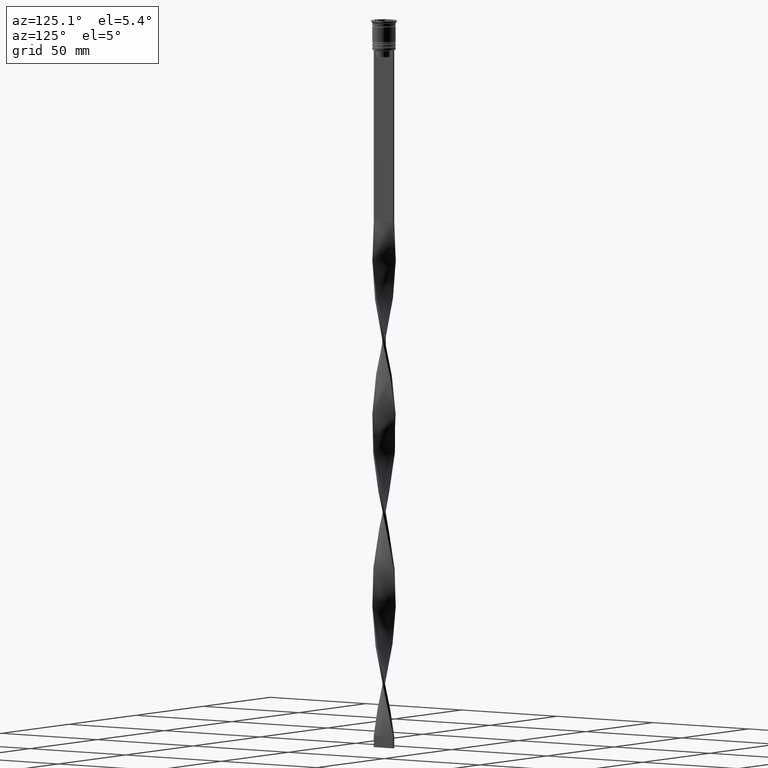
[diagram: clean part render]
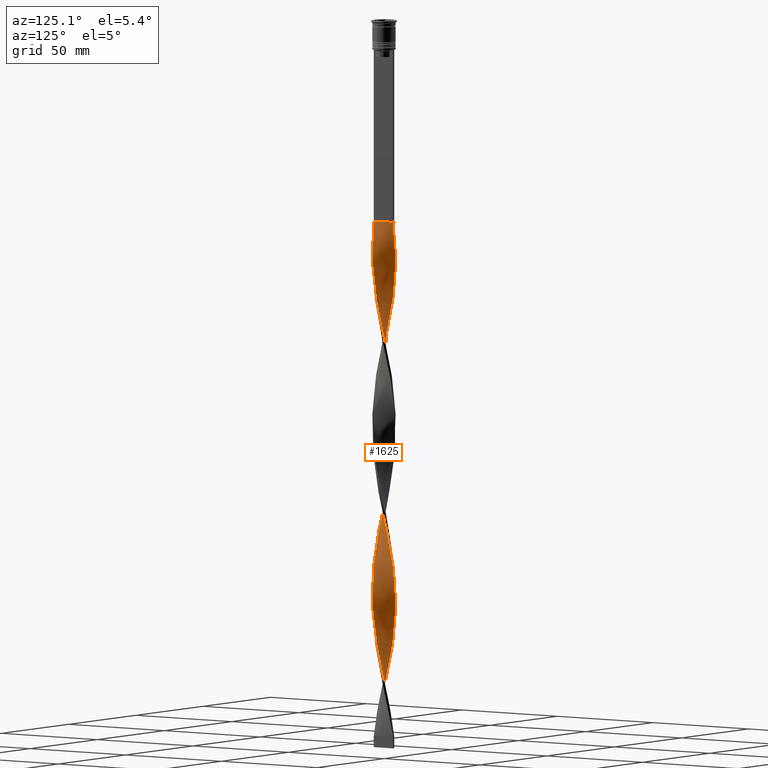
[diagram: same view with one face highlighted and labeled with its STEP entity id]
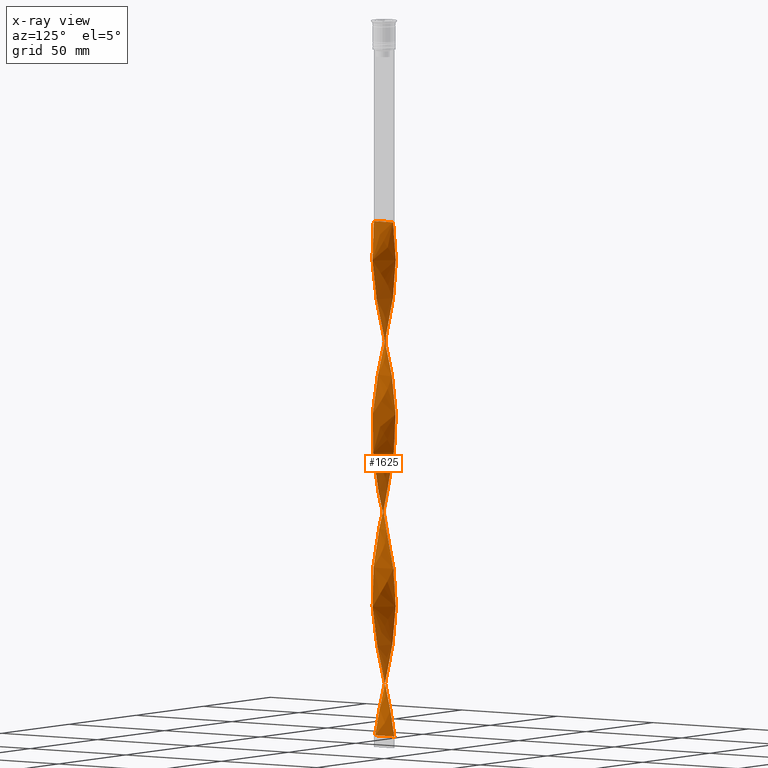
[diagram: x-ray of the same camera — body ghosted, the highlighted face saturated]
A machine part, auxiliary view. The second image highlights one B-rep face of the part: STEP entity #1625.
The next image is the same camera in x-ray: the body ghosted, the highlighted face saturated — about 0% of this face is hidden behind the body in this view.
In plain terms, the highlighted face is a freeform B-spline surface patch.
Its self-contained STEP definition (entity closure, byte-faithful):
#1 = CARTESIAN_POINT ( 'NONE',  ( -5.024212137769516140, 0.08539551914167348157, -125.2719298245613970 ) ) ;
#3 = CARTESIAN_POINT ( 'NONE',  ( -3.164131141785982759, -3.925766796198028263, -293.9298245614035068 ) ) ;
#5 = CARTESIAN_POINT ( 'NONE',  ( -4.017260339178526429, 3.018545902792141078, -179.5526315789473415 ) ) ;
#6 = CARTESIAN_POINT ( 'NONE',  ( -1.316153603105031378, -4.849509221873245401, -156.2894736842105203 ) ) ;
#14 = CARTESIAN_POINT ( 'NONE',  ( 0.5000000000000000000, -4.999999999999999112, -86.50000000000000000 ) ) ;
#16 = CARTESIAN_POINT ( 'NONE',  ( -3.465633818146537148, -3.638596190637134242, -291.9912280701753957 ) ) ;
#17 = CARTESIAN_POINT ( 'NONE',  ( -0.4999999999999997780, 1.666666666666666075, -307.5000000000000000 ) ) ;
#21 = CARTESIAN_POINT ( 'NONE',  ( -1.717995393956229355, -4.740449624971875053, -301.6842105263157805 ) ) ;
#23 = CARTESIAN_POINT ( 'NONE',  ( 3.339978767552787886, 3.754269813465269223, -140.7807017543859445 ) ) ;
#39 = CARTESIAN_POINT ( 'NONE',  ( 0.5000000000000000000, 5.000000000000000888, -86.50000000000000000 ) ) ;
#42 = CARTESIAN_POINT ( 'NONE',  ( 4.724258586126252268, 1.712127568673660560, -129.1491228070175339 ) ) ;
#45 = CARTESIAN_POINT ( 'NONE',  ( 4.651228756897744177, -1.946648882453702267, -259.0350877192983035 ) ) ;
#58 = CARTESIAN_POINT ( 'NONE',  ( -1.717995393956225580, 4.740449624971874165, -165.9824561403508199 ) ) ;
#60 = CARTESIAN_POINT ( 'NONE',  ( 2.324095515968828352, 4.474589461973507376, -293.9298245614035068 ) ) ;
#72 = CARTESIAN_POINT ( 'NONE',  ( -1.150588725173100402, 4.891435943105515882, -94.25438596491227372 ) ) ;
#73 = CARTESIAN_POINT ( 'NONE',  ( -4.908199934305800483, -1.154532037420935353, -278.4210526315789593 ) ) ;
#77 = CARTESIAN_POINT ( 'NONE',  ( 4.969744073267051476, -0.7427273027343307410, -117.5175438596491233 ) ) ;
#88 = CARTESIAN_POINT ( 'NONE',  ( -4.941632792297183663, 0.9111889738649969761, -121.3947368421052460 ) ) ;
#93 = CARTESIAN_POINT ( 'NONE',  ( -4.459306470373857856, -2.316157551480869881, -284.2368421052631220 ) ) ;
#99 = CARTESIAN_POINT ( 'NONE',  ( -4.779714345601770553, 1.550590459937320587, -187.3070175438596436 ) ) ;
#120 = CARTESIAN_POINT ( 'NONE',  ( 1.150588725173100624, 4.891435943105514106, -299.7456140350877263 ) ) ;
#129 = ORIENTED_EDGE ( 'NONE', *, *, #2794, .T. ) ;
#136 = CARTESIAN_POINT ( 'NONE',  ( 0.3297922997023089442, 5.014103812153978268, -303.6228070175438347 ) ) ;
#137 = CARTESIAN_POINT ( 'NONE',  ( 0.5000000000000000000, 5.000000000000000888, -86.50000000000000000 ) ) ;
#158 = CARTESIAN_POINT ( 'NONE',  ( 4.378018920948802517, 2.466363786592374652, -280.3596491228070136 ) ) ;
#159 = CARTESIAN_POINT ( 'NONE',  ( -4.724258586126253157, 1.712127568673661671, -117.5175438596491233 ) ) ;
#170 = CARTESIAN_POINT ( 'NONE',  ( -4.969744073267052364, -0.7427273027343305190, -129.1491228070175339 ) ) ;
#180 = CARTESIAN_POINT ( 'NONE',  ( 5.031288212228302470, -0.3309225680477264619, -266.7894736842105203 ) ) ;
#181 = CARTESIAN_POINT ( 'NONE',  ( -4.908199934305800483, -1.154532037420935353, -131.0877192982456165 ) ) ;
#198 = CARTESIAN_POINT ( 'NONE',  ( 1.555904663195419646, 4.796095443128455038, -297.8070175438595584 ) ) ;
#199 = CARTESIAN_POINT ( 'NONE',  ( -4.866129521283640180, 1.320664341398920971, -119.4561403508771917 ) ) ;
#219 = CARTESIAN_POINT ( 'NONE',  ( 4.459306470373858744, 2.316157551480868992, -210.5701754385964932 ) ) ;
#223 = CARTESIAN_POINT ( 'NONE',  ( -4.459306470373857856, -2.316157551480869881, -284.2368421052631220 ) ) ;
#227 = CARTESIAN_POINT ( 'NONE',  ( 1.717995393956226691, -4.740449624971872389, -92.31578947368420529 ) ) ;
#241 = CARTESIAN_POINT ( 'NONE',  ( 0.5000000000000000000, 5.000000000000000888, -233.8333333333333428 ) ) ;
#247 = CARTESIAN_POINT ( 'NONE',  ( 4.779714345601773218, 1.550590459937319476, -206.6929824561403564 ) ) ;
#250 = CARTESIAN_POINT ( 'NONE',  ( -3.164131141785980539, 3.925766796198027375, -173.7368421052631220 ) ) ;
#259 = CARTESIAN_POINT ( 'NONE',  ( -4.267384183849968871, -2.685666220508038382, -138.8421052631578902 ) ) ;
#262 = CARTESIAN_POINT ( 'NONE',  ( -4.969744073267052364, -0.7427273027343305190, -276.4824561403509051 ) ) ;
#265 = CARTESIAN_POINT ( 'NONE',  ( -1.150588725173101068, -4.891435943105514106, -226.0789473684210407 ) ) ;
#277 = CARTESIAN_POINT ( 'NONE',  ( -3.164131141785982759, -3.925766796198028263, -146.5964912280701355 ) ) ;
#280 = CARTESIAN_POINT ( 'NONE',  ( 3.339978767552786110, -3.754269813465273664, -179.5526315789473415 ) ) ;
#283 = CARTESIAN_POINT ( 'NONE',  ( 0.7452727871507842661, 4.986776443082572285, -154.3508771929824661 ) ) ;
#306 = CARTESIAN_POINT ( 'NONE',  ( 1.717995393956227579, 4.740449624971874165, -228.0175438596490949 ) ) ;
#308 = CARTESIAN_POINT ( 'NONE',  ( 2.096405966873736482, 4.566736473900832927, -226.0789473684210407 ) ) ;
#310 = CARTESIAN_POINT ( 'NONE',  ( -2.474816539791240722, 4.393023322829789024, -169.8596491228070136 ) ) ;
#312 = VERTEX_POINT ( 'NONE', #2394 ) ;
#325 = CARTESIAN_POINT ( 'NONE',  ( -5.031288212228305134, -0.3309225680477259068, -274.5438596491227941 ) ) ;
#327 = CARTESIAN_POINT ( 'NONE',  ( -3.339978767552788330, 3.754269813465271888, -105.8859649122806985 ) ) ;
#329 = CARTESIAN_POINT ( 'NONE',  ( 2.096405966873734261, -4.566736473900831150, -94.25438596491227372 ) ) ;
#331 = CARTESIAN_POINT ( 'NONE',  ( 0.08568818774616382417, -5.041431181225382474, -231.8947368421052602 ) ) ;
#345 = CARTESIAN_POINT ( 'NONE',  ( -0.3297922997023085001, 5.014103812153980044, -90.37719298245613686 ) ) ;
#349 = CARTESIAN_POINT ( 'NONE',  ( -5.017136063310725369, -0.5017136063310717597, -197.0000000000000000 ) ) ;
#351 = CARTESIAN_POINT ( 'NONE',  ( -0.4999999999999993339, 4.999999999999999112, -307.5000000000000000 ) ) ;
#361 = LINE ( 'NONE', #14, #3829 ) ;
#369 = CARTESIAN_POINT ( 'NONE',  ( -2.676493308750143019, 4.252808903326802614, -102.0087719298245474 ) ) ;
#372 = CARTESIAN_POINT ( 'NONE',  ( 4.582387650968865245, 2.103590795948400594, -131.0877192982456449 ) ) ;
#374 = CARTESIAN_POINT ( 'NONE',  ( -0.5000000000000006661, -5.000000000000000888, -307.5000000000000000 ) ) ;
#387 = CARTESIAN_POINT ( 'NONE',  ( -5.024212137769516140, 0.08539551914167348157, -272.6052631578947398 ) ) ;
#391 = CARTESIAN_POINT ( 'NONE',  ( -0.4999999999999993339, 4.999999999999999112, -160.1666666666666856 ) ) ;
#393 = CARTESIAN_POINT ( 'NONE',  ( 4.267384183849967094, -2.685666220508037494, -255.1578947368421382 ) ) ;
#406 = CARTESIAN_POINT ( 'NONE',  ( -4.267384183849968871, -2.685666220508038382, -286.1754385964911762 ) ) ;
#409 = CARTESIAN_POINT ( 'NONE',  ( -2.096405966873735593, -4.566736473900832927, -299.7456140350877263 ) ) ;
#433 = CARTESIAN_POINT ( 'NONE',  ( 5.017136063310725369, 0.5017136063310723149, -270.6666666666665719 ) ) ;
#437 = CARTESIAN_POINT ( 'NONE',  ( 1.555904663195419424, 4.796095443128454150, -297.8070175438595584 ) ) ;
#455 = CARTESIAN_POINT ( 'NONE',  ( 3.028891101531455021, 4.031028344680095188, -290.0526315789473415 ) ) ;
#472 = CARTESIAN_POINT ( 'NONE',  ( -2.324095515968829240, 4.474589461973509152, -100.0701754385964932 ) ) ;
#492 = CARTESIAN_POINT ( 'NONE',  ( 4.017260339178528206, -3.018545902792139302, -253.2192982456140555 ) ) ;
#493 = CARTESIAN_POINT ( 'NONE',  ( -5.024212137769516140, 0.08539551914167348157, -125.2719298245613970 ) ) ;
#517 = CARTESIAN_POINT ( 'NONE',  ( -4.173650190928739789, -2.829136777236346934, -208.6315789473684106 ) ) ;
#524 = CARTESIAN_POINT ( 'NONE',  ( 5.031288212228302470, -0.3309225680477264619, -119.4561403508771917 ) ) ;
#538 = CARTESIAN_POINT ( 'NONE',  ( 0.08568818774616604461, 5.041431181225384250, -235.7719298245613970 ) ) ;
#541 = CARTESIAN_POINT ( 'NONE',  ( -0.3297922997023085001, 5.014103812153980044, -237.7105263157894797 ) ) ;
#557 = CARTESIAN_POINT ( 'NONE',  ( 3.651066433574119863, -3.477511282250448144, -181.4912280701754241 ) ) ;
#561 = CARTESIAN_POINT ( 'NONE',  ( -5.024212137769516140, 0.08539551914167348157, -272.6052631578947398 ) ) ;
#565 = CARTESIAN_POINT ( 'NONE',  ( -5.031288212228302470, 0.3309225680477291820, -193.1228070175438347 ) ) ;
#581 = CARTESIAN_POINT ( 'NONE',  ( 4.378018920948802517, -2.466363786592378204, -187.3070175438596436 ) ) ;
#585 = CARTESIAN_POINT ( 'NONE',  ( 3.164131141785983203, 3.925766796198028263, -220.2631578947368212 ) ) ;
#587 = CARTESIAN_POINT ( 'NONE',  ( -0.08568818774616442091, 5.041431181225382474, -158.2280701754386030 ) ) ;
#598 = CARTESIAN_POINT ( 'NONE',  ( 3.028891101531455465, -4.031028344680097852, -177.6140350877192873 ) ) ;
#602 = CARTESIAN_POINT ( 'NONE',  ( 0.5000000000000000000, 5.000000000000000888, -233.8333333333333428 ) ) ;
#605 = CARTESIAN_POINT ( 'NONE',  ( -2.324095515968828796, -4.474589461973507376, -220.2631578947368212 ) ) ;
#607 = CARTESIAN_POINT ( 'NONE',  ( -4.267384183849969759, -2.685666220508038382, -138.8421052631578902 ) ) ;
#609 = CARTESIAN_POINT ( 'NONE',  ( -2.819473840788613295, -4.159395059513908421, -148.5350877192982466 ) ) ;
#617 = CARTESIAN_POINT ( 'NONE',  ( -0.7452727871507827118, 4.986776443082574062, -239.6491228070175339 ) ) ;
#618 = CARTESIAN_POINT ( 'NONE',  ( 2.819473840788615515, 4.159395059513907533, -222.2017543859649038 ) ) ;
#620 = CARTESIAN_POINT ( 'NONE',  ( -4.941632792297182775, -0.9111889738649967541, -198.9385964912280826 ) ) ;
#643 = CARTESIAN_POINT ( 'NONE',  ( 5.031288212228302470, -0.3309225680477264619, -119.4561403508771917 ) ) ;
#645 = CARTESIAN_POINT ( 'NONE',  ( -5.017136063310725369, -0.5017136063310717597, -197.0000000000000000 ) ) ;
#646 = CARTESIAN_POINT ( 'NONE',  ( -0.5000000000000006661, -5.000000000000000888, -160.1666666666666856 ) ) ;
#662 = CARTESIAN_POINT ( 'NONE',  ( -4.969744073267050588, 0.7427273027343300749, -191.1842105263157805 ) ) ;
#676 = CARTESIAN_POINT ( 'NONE',  ( -2.324095515968829684, 4.474589461973509152, -100.0701754385964932 ) ) ;
#679 = CARTESIAN_POINT ( 'NONE',  ( 1.316153603105030268, -4.849509221873243625, -90.37719298245613686 ) ) ;
#706 = CARTESIAN_POINT ( 'NONE',  ( 4.173650190928738901, 2.829136777236349598, -134.9649122807017534 ) ) ;
#708 = CARTESIAN_POINT ( 'NONE',  ( 4.908199934305798706, -1.154532037420935353, -262.9122807017543551 ) ) ;
#722 = CARTESIAN_POINT ( 'NONE',  ( -3.767136494507087541, 3.351425585076241997, -177.6140350877192873 ) ) ;
#724 = CARTESIAN_POINT ( 'NONE',  ( 4.724258586126252268, 1.712127568673660560, -276.4824561403509051 ) ) ;
#740 = CARTESIAN_POINT ( 'NONE',  ( -1.940000089582125886, -4.635342452550980319, -222.2017543859649038 ) ) ;
#742 = CARTESIAN_POINT ( 'NONE',  ( 5.031288212228302470, -0.3309225680477264619, -266.7894736842105203 ) ) ;
#762 = CARTESIAN_POINT ( 'NONE',  ( 1.717995393956226691, -4.740449624971873277, -239.6491228070175055 ) ) ;
#763 = CARTESIAN_POINT ( 'NONE',  ( -1.150588725173100402, 4.891435943105515882, -94.25438596491227372 ) ) ;
#777 = CARTESIAN_POINT ( 'NONE',  ( -0.4999999999999993339, 4.999999999999999112, -307.5000000000000000 ) ) ;
#780 = CARTESIAN_POINT ( 'NONE',  ( -1.555904663195420090, -4.796095443128455038, -224.1403508771929580 ) ) ;
#803 = CARTESIAN_POINT ( 'NONE',  ( 2.096405966873734261, -4.566736473900831150, -241.5877192982455881 ) ) ;
#811 = CARTESIAN_POINT ( 'NONE',  ( 0.5000000000000000000, -4.999999999999999112, -86.50000000000000000 ) ) ;
#826 = CARTESIAN_POINT ( 'NONE',  ( 4.582387650968865245, 2.103590795948400594, -278.4210526315789593 ) ) ;
#827 = CARTESIAN_POINT ( 'NONE',  ( -4.651228756897745953, -1.946648882453702711, -134.9649122807017534 ) ) ;
#851 = CARTESIAN_POINT ( 'NONE',  ( -4.173650190928740678, 2.829136777236350930, -111.7017543859649038 ) ) ;
#854 = CARTESIAN_POINT ( 'NONE',  ( -3.912358312251429826, 3.153324029743399315, -257.0964912280701924 ) ) ;
#870 = CARTESIAN_POINT ( 'NONE',  ( -1.940000089582123666, 4.635342452550982983, -245.4649122807017534 ) ) ;
#873 = CARTESIAN_POINT ( 'NONE',  ( 4.866129521283640180, -1.320664341398923414, -193.1228070175438063 ) ) ;
#876 = CARTESIAN_POINT ( 'NONE',  ( 4.459306470373856079, -2.316157551480869881, -109.7631578947368354 ) ) ;
#891 = CARTESIAN_POINT ( 'NONE',  ( -3.465633818146537148, -3.638596190637134242, -144.6578947368421098 ) ) ;
#897 = CARTESIAN_POINT ( 'NONE',  ( 4.459306470373858744, 2.316157551480868992, -210.5701754385964932 ) ) ;
#901 = CARTESIAN_POINT ( 'NONE',  ( 1.555904663195419424, 4.796095443128454150, -150.4736842105263008 ) ) ;
#914 = CARTESIAN_POINT ( 'NONE',  ( 2.474816539791245162, 4.393023322829789912, -224.1403508771929864 ) ) ;
#917 = CARTESIAN_POINT ( 'NONE',  ( 3.028891101531455465, -4.031028344680097852, -177.6140350877192873 ) ) ;
#919 = CARTESIAN_POINT ( 'NONE',  ( -0.3297922997023116642, -5.014103812153977380, -229.9561403508772059 ) ) ;
#931 = CARTESIAN_POINT ( 'NONE',  ( -4.459306470373857856, -2.316157551480869881, -136.9035087719298076 ) ) ;
#934 = CARTESIAN_POINT ( 'NONE',  ( -4.866129521283640180, 1.320664341398920971, -119.4561403508771917 ) ) ;
#935 = CARTESIAN_POINT ( 'NONE',  ( 5.031288212228305134, 0.3309225680477231313, -200.8771929824561084 ) ) ;
#937 = CARTESIAN_POINT ( 'NONE',  ( -2.676493308750143019, -4.252808903326800838, -218.3245614035087954 ) ) ;
#950 = CARTESIAN_POINT ( 'NONE',  ( -1.555904663195417426, 4.796095443128456814, -243.5263157894736707 ) ) ;
#952 = CARTESIAN_POINT ( 'NONE',  ( 0.7452727871507843771, 4.986776443082572285, -154.3508771929824661 ) ) ;
#955 = CARTESIAN_POINT ( 'NONE',  ( 4.378018920948802517, 2.466363786592374652, -133.0263157894736992 ) ) ;
#976 = CARTESIAN_POINT ( 'NONE',  ( -0.9143118122538320680, 4.958568818774616638, -162.1052631578947683 ) ) ;
#978 = CARTESIAN_POINT ( 'NONE',  ( 0.9143118122538338444, -4.958568818774615750, -235.7719298245613970 ) ) ;
#983 = CARTESIAN_POINT ( 'NONE',  ( 1.555904663195416537, -4.796095443128457703, -169.8596491228070136 ) ) ;
#994 = CARTESIAN_POINT ( 'NONE',  ( -4.941632792297183663, 0.9111889738649969761, -268.7280701754385746 ) ) ;
#998 = CARTESIAN_POINT ( 'NONE',  ( -1.316153603105031378, -4.849509221873245401, -303.6228070175438347 ) ) ;
#1019 = CARTESIAN_POINT ( 'NONE',  ( 4.651228756897745065, -1.946648882453702267, -111.7017543859649038 ) ) ;
#1021 = CARTESIAN_POINT ( 'NONE',  ( 4.969744073267051476, -0.7427273027343307410, -264.8508771929824661 ) ) ;
#1028 = CARTESIAN_POINT ( 'NONE',  ( -2.096405966873735593, -4.566736473900832927, -152.4122807017543835 ) ) ;
#1048 = CARTESIAN_POINT ( 'NONE',  ( 3.465633818146535372, -3.638596190637133354, -102.0087719298245474 ) ) ;
#1062 = CARTESIAN_POINT ( 'NONE',  ( 4.459306470373856079, -2.316157551480869881, -257.0964912280701924 ) ) ;
#1064 = CARTESIAN_POINT ( 'NONE',  ( 3.767136494507087541, -3.351425585076240221, -251.2807017543860013 ) ) ;
#1079 = CARTESIAN_POINT ( 'NONE',  ( -0.7452727871507828228, -4.986776443082572285, -228.0175438596490949 ) ) ;
#1100 = CARTESIAN_POINT ( 'NONE',  ( -0.4999999999999993339, 4.999999999999999112, -307.5000000000000000 ) ) ;
#1120 = CARTESIAN_POINT ( 'NONE',  ( -1.150588725173101068, -4.891435943105514106, -226.0789473684210407 ) ) ;
#1140 = CARTESIAN_POINT ( 'NONE',  ( -4.779714345601773218, -1.550590459937317700, -133.0263157894736992 ) ) ;
#1163 = CARTESIAN_POINT ( 'NONE',  ( -3.651066433574120751, 3.477511282250446811, -107.8245614035087527 ) ) ;
#1182 = CARTESIAN_POINT ( 'NONE',  ( 4.173650190928738901, -2.829136777236353151, -185.3684210526315610 ) ) ;
#1184 = CARTESIAN_POINT ( 'NONE',  ( -4.866129521283640180, 1.320664341398920971, -266.7894736842105203 ) ) ;
#1203 = CARTESIAN_POINT ( 'NONE',  ( -0.3297922997023085001, 5.014103812153980044, -237.7105263157894797 ) ) ;
#1207 = CARTESIAN_POINT ( 'NONE',  ( 4.173650190928738901, -2.829136777236352707, -185.3684210526315894 ) ) ;
#1210 = CARTESIAN_POINT ( 'NONE',  ( -4.908199934305798706, 1.154532037420935797, -189.2456140350877263 ) ) ;
#1218 = CARTESIAN_POINT ( 'NONE',  ( 4.908199934305800483, 1.154532037420934687, -204.7543859649123021 ) ) ;
#1223 = CARTESIAN_POINT ( 'NONE',  ( -4.651228756897745953, -1.946648882453702711, -282.2982456140351246 ) ) ;
#1228 = CARTESIAN_POINT ( 'NONE',  ( 3.028891101531455021, 4.031028344680095188, -142.7192982456140271 ) ) ;
#1243 = CARTESIAN_POINT ( 'NONE',  ( 3.339978767552786110, -3.754269813465273664, -179.5526315789473415 ) ) ;
#1246 = CARTESIAN_POINT ( 'NONE',  ( -3.028891101531455909, 4.031028344680096076, -251.2807017543860013 ) ) ;
#1248 = CARTESIAN_POINT ( 'NONE',  ( 2.474816539791241166, -4.393023322829789024, -243.5263157894736707 ) ) ;
#1263 = CARTESIAN_POINT ( 'NONE',  ( 3.164131141785983203, 3.925766796198028263, -220.2631578947368212 ) ) ;
#1268 = CARTESIAN_POINT ( 'NONE',  ( 3.767136494507091538, 3.351425585076239777, -216.3859649122807127 ) ) ;
#1271 = CARTESIAN_POINT ( 'NONE',  ( -4.779714345601770553, 1.550590459937320587, -187.3070175438596436 ) ) ;
#1273 = CARTESIAN_POINT ( 'NONE',  ( -3.767136494507089317, -3.351425585076241997, -142.7192982456140271 ) ) ;
#1283 = DIRECTION ( 'NONE',  ( 0.000000000000000000, 1.000000000000000000, 0.000000000000000000 ) ) ;
#1290 = CARTESIAN_POINT ( 'NONE',  ( 2.676493308750142575, 4.252808903326800838, -144.6578947368421098 ) ) ;
#1292 = CARTESIAN_POINT ( 'NONE',  ( -3.912358312251429826, -3.153324029743396650, -210.5701754385964932 ) ) ;
#1313 = CARTESIAN_POINT ( 'NONE',  ( 3.164131141785981871, -3.925766796198026487, -100.0701754385964932 ) ) ;
#1316 = CARTESIAN_POINT ( 'NONE',  ( -0.08568818774616442091, 5.041431181225382474, -305.5614035087719458 ) ) ;
#1325 = CARTESIAN_POINT ( 'NONE',  ( -4.651228756897745953, -1.946648882453702711, -282.2982456140351246 ) ) ;
#1328 = CARTESIAN_POINT ( 'NONE',  ( -2.474816539791240722, 4.393023322829789024, -169.8596491228070136 ) ) ;
#1330 = CARTESIAN_POINT ( 'NONE',  ( 4.378018920948802517, 2.466363786592374652, -280.3596491228070136 ) ) ;
#1345 = CARTESIAN_POINT ( 'NONE',  ( 0.5000000000000000000, -4.999999999999999112, -86.50000000000000000 ) ) ;
#1367 = CARTESIAN_POINT ( 'NONE',  ( -3.164131141785982759, -3.925766796198028263, -293.9298245614035068 ) ) ;
#1370 = CARTESIAN_POINT ( 'NONE',  ( 5.017136063310725369, 0.5017136063310723149, -123.3333333333333286 ) ) ;
#1390 = CARTESIAN_POINT ( 'NONE',  ( 0.7452727871507843771, 4.986776443082572285, -301.6842105263157805 ) ) ;
#1392 = CARTESIAN_POINT ( 'NONE',  ( 4.173650190928738901, 2.829136777236350042, -282.2982456140351246 ) ) ;
#1408 = CARTESIAN_POINT ( 'NONE',  ( 4.866129521283639292, 1.320664341398920083, -274.5438596491227941 ) ) ;
#1409 = CARTESIAN_POINT ( 'NONE',  ( -0.3297922997023085001, 5.014103812153980044, -90.37719298245613686 ) ) ;
#1432 = CARTESIAN_POINT ( 'NONE',  ( 3.651066433574118975, 3.477511282250445923, -286.1754385964911762 ) ) ;
#1433 = CARTESIAN_POINT ( 'NONE',  ( -5.017136063310726257, 0.5017136063310729810, -123.3333333333333286 ) ) ;
#1459 = CARTESIAN_POINT ( 'NONE',  ( 2.819473840788611962, -4.159395059513907533, -98.13157894736841058 ) ) ;
#1496 = CARTESIAN_POINT ( 'NONE',  ( 4.267384183849968871, 2.685666220508037938, -212.5087719298246043 ) ) ;
#1498 =( BOUNDED_CURVE ( )  B_SPLINE_CURVE ( 2, ( #137, #2990, #1409, #3716, #763, #4003, #1797, #472, #3070, #1750, #2083, #1163, #3027, #851, #3671, #2700, #159, #199, #3347, #1433, #493, #3693, #1778, #181, #1140, #827, #931, #259, #2206, #4046, #891, #277, #2852, #3398, #2549, #3420, #1553, #2508, #4067, #2190, #1862, #3461, #4111, #4085, #1816, #3750, #1532, #598, #1243, #557, #2172, #1182, #581, #3481, #2462, #3444, #2811, #2482, #3134, #2829, #1899, #1218, #2792, #1840, #219, #1496, #3777, #1879, #3116, #1263, #3150, #914, #2530, #306, #1514, #3798, #241, #538, #1203, #617, #3177, #950, #870, #1582, #2870, #4132, #3732, #2144, #3091, #3816, #2007, #1621, #2269, #3195, #994, #1602, #387, #325, #3859, #73, #2909, #1325, #93, #406, #2568, #2889, #16, #1367, #2611, #3528, #1948, #2593, #3877, #2654, #1686 ),
 .UNSPECIFIED., .F., .T. ) 
 B_SPLINE_CURVE_WITH_KNOTS ( ( 3, 2, 2, 2, 2, 2, 2, 2, 2, 2, 2, 2, 2, 2, 2, 2, 2, 2, 2, 2, 2, 2, 2, 2, 2, 2, 2, 2, 2, 2, 2, 2, 2, 2, 2, 2, 2, 2, 2, 2, 2, 2, 2, 2, 2, 2, 2, 2, 2, 2, 2, 2, 2, 2, 2, 2, 2, 3 ),
 ( 0.000000000000000000, 0.01315789473684210453, 0.02631578947368420907, 0.03947368421052631360, 0.05263157894736841813, 0.06578947368421052266, 0.07894736842105262720, 0.09210526315789473173, 0.1052631578947368363, 0.1184210526315789408, 0.1315789473684210453, 0.1447368421052631637, 0.1578947368421052544, 0.1710526315789473728, 0.1842105263157894635, 0.1973684210526315541, 0.2105263157894736725, 0.2236842105263157909, 0.2368421052631578816, 0.2500000000000000000, 0.2631578947368420907, 0.2763157894736842368, 0.2894736842105263275, 0.3026315789473684181, 0.3157894736842105088, 0.3289473684210526550, 0.3421052631578947456, 0.3552631578947368918, 0.3684210526315789269, 0.3815789473684210731, 0.3947368421052631082, 0.4078947368421052544, 0.4210526315789473450, 0.4342105263157895467, 0.4473684210526315819, 0.4605263157894736725, 0.4736842105263157632, 0.4868421052631579093, 0.5000000000000000000, 0.5131578947368421462, 0.5263157894736841813, 0.5394736842105263275, 0.5526315789473684736, 0.5657894736842105088, 0.5789473684210526550, 0.5921052631578946901, 0.6052631578947368363, 0.6184210526315789824, 0.6315789473684210176, 0.6447368421052631637, 0.6578947368421053099, 0.6710526315789473450, 0.6842105263157894912, 0.6973684210526315264, 0.7105263157894737835, 0.7236842105263158187, 0.7368421052631578538, 0.7500000000000000000 ),
 .UNSPECIFIED. ) 
 CURVE ( )  GEOMETRIC_REPRESENTATION_ITEM ( )  RATIONAL_B_SPLINE_CURVE ( ( 1.000000000000000000, 0.9965844930066698470, 1.000000000000000000, 0.9965844930066698470, 1.000000000000000000, 0.9965844930066698470, 1.000000000000000000, 0.9965844930066698470, 1.000000000000000000, 0.9965844930066698470, 1.000000000000000000, 0.9965844930066698470, 1.000000000000000000, 0.9965844930066698470, 1.000000000000000000, 0.9965844930066698470, 1.000000000000000000, 0.9965844930066698470, 1.000000000000000000, 0.9965844930066698470, 1.000000000000000000, 0.9965844930066698470, 1.000000000000000000, 0.9965844930066698470, 1.000000000000000000, 0.9965844930066698470, 1.000000000000000000, 0.9965844930066698470, 1.000000000000000000, 0.9965844930066698470, 1.000000000000000000, 0.9965844930066698470, 1.000000000000000000, 0.9965844930066698470, 1.000000000000000000, 0.9965844930066698470, 1.000000000000000000, 0.9965844930066698470, 1.000000000000000000, 0.9965844930066698470, 1.000000000000000000, 0.9965844930066698470, 1.000000000000000000, 0.9965844930066698470, 1.000000000000000000, 0.9965844930066698470, 1.000000000000000000, 0.9965844930066698470, 1.000000000000000000, 0.9965844930066698470, 1.000000000000000000, 0.9965844930066698470, 1.000000000000000000, 0.9965844930066698470, 1.000000000000000000, 0.9965844930066698470, 1.000000000000000000, 0.9965844930066698470, 1.000000000000000000, 0.9965844930066698470, 1.000000000000000000, 0.9965844930066698470, 1.000000000000000000, 0.9965844930066698470, 1.000000000000000000, 0.9965844930066698470, 1.000000000000000000, 0.9965844930066698470, 1.000000000000000000, 0.9965844930066698470, 1.000000000000000000, 0.9965844930066698470, 1.000000000000000000, 0.9965844930066698470, 1.000000000000000000, 0.9965844930066698470, 1.000000000000000000, 0.9965844930066698470, 1.000000000000000000, 0.9965844930066698470, 1.000000000000000000, 0.9965844930066698470, 1.000000000000000000, 0.9965844930066698470, 1.000000000000000000, 0.9965844930066698470, 1.000000000000000000, 0.9965844930066698470, 1.000000000000000000, 0.9965844930066698470, 1.000000000000000000, 0.9965844930066698470, 1.000000000000000000, 0.9965844930066698470, 1.000000000000000000, 0.9965844930066698470, 1.000000000000000000, 0.9965844930066698470, 1.000000000000000000, 0.9965844930066698470, 1.000000000000000000, 0.9965844930066698470, 1.000000000000000000, 0.9965844930066698470, 1.000000000000000000, 0.9965844930066698470, 1.000000000000000000, 0.9965844930066698470, 1.000000000000000000, 0.9965844930066698470, 1.000000000000000000, 0.9965844930066698470, 1.000000000000000000, 0.9965844930066698470, 1.000000000000000000 ) ) 
 REPRESENTATION_ITEM ( '' )  );
#1502 = CARTESIAN_POINT ( 'NONE',  ( 2.676493308750143019, -4.252808903326802614, -175.6754385964912046 ) ) ;
#1514 = CARTESIAN_POINT ( 'NONE',  ( 1.316153603105034264, 4.849509221873244513, -229.9561403508772059 ) ) ;
#1518 = CARTESIAN_POINT ( 'NONE',  ( -4.724258586126253157, 1.712127568673661671, -264.8508771929824661 ) ) ;
#1520 = CARTESIAN_POINT ( 'NONE',  ( -0.4999999999999993339, 4.999999999999999112, -160.1666666666666856 ) ) ;
#1523 = CARTESIAN_POINT ( 'NONE',  ( -4.908199934305800483, -1.154532037420935353, -131.0877192982456449 ) ) ;
#1532 = CARTESIAN_POINT ( 'NONE',  ( 2.676493308750143019, -4.252808903326802614, -175.6754385964912046 ) ) ;
#1536 = CARTESIAN_POINT ( 'NONE',  ( 3.651066433574119863, -3.477511282250448144, -181.4912280701754241 ) ) ;
#1539 = CARTESIAN_POINT ( 'NONE',  ( -0.7452727871507827118, -4.986776443082572285, -228.0175438596490949 ) ) ;
#1542 = CARTESIAN_POINT ( 'NONE',  ( -3.465633818146537148, -3.638596190637134242, -144.6578947368421098 ) ) ;
#1553 = CARTESIAN_POINT ( 'NONE',  ( -1.316153603105031378, -4.849509221873245401, -156.2894736842105203 ) ) ;
#1558 = CARTESIAN_POINT ( 'NONE',  ( 3.465633818146537592, 3.638596190637133354, -218.3245614035087954 ) ) ;
#1563 = CARTESIAN_POINT ( 'NONE',  ( 4.724258586126252268, 1.712127568673660560, -129.1491228070175339 ) ) ;
#1582 = CARTESIAN_POINT ( 'NONE',  ( -2.324095515968829240, 4.474589461973509152, -247.4035087719297792 ) ) ;
#1585 = CARTESIAN_POINT ( 'NONE',  ( -5.031288212228305134, -0.3309225680477259623, -274.5438596491227941 ) ) ;
#1588 = CARTESIAN_POINT ( 'NONE',  ( 2.324095515968828352, 4.474589461973507376, -146.5964912280701355 ) ) ;
#1601 = FACE_OUTER_BOUND ( 'NONE', #3352, .T. ) ;
#1602 = CARTESIAN_POINT ( 'NONE',  ( -5.017136063310726257, 0.5017136063310729810, -270.6666666666666288 ) ) ;
#1605 = ORIENTED_EDGE ( 'NONE', *, *, #3593, .F. ) ;
#1606 = CARTESIAN_POINT ( 'NONE',  ( 4.866129521283639292, 1.320664341398920083, -127.2105263157894370 ) ) ;
#1608 = CARTESIAN_POINT ( 'NONE',  ( -3.465633818146535372, 3.638596190637134242, -175.6754385964912046 ) ) ;
#1621 = CARTESIAN_POINT ( 'NONE',  ( -4.582387650968867021, 2.103590795948401482, -262.9122807017543551 ) ) ;
#1625 = ADVANCED_FACE ( 'NONE', ( #1601 ), #2064, .T. ) ;
#1626 = CARTESIAN_POINT ( 'NONE',  ( 4.908199934305798706, -1.154532037420935353, -115.5789473684210265 ) ) ;
#1628 = CARTESIAN_POINT ( 'NONE',  ( 4.941632792297182775, 0.9111889738649961989, -272.6052631578947398 ) ) ;
#1629 = CARTESIAN_POINT ( 'NONE',  ( 0.3297922997023078895, -5.014103812153980044, -164.0438596491227941 ) ) ;
#1647 = CARTESIAN_POINT ( 'NONE',  ( -0.5000000000000006661, -5.000000000000000888, -307.5000000000000000 ) ) ;
#1649 = CARTESIAN_POINT ( 'NONE',  ( -2.474816539791244274, -4.393023322829789912, -297.8070175438595584 ) ) ;
#1672 = CARTESIAN_POINT ( 'NONE',  ( 3.651066433574118975, 3.477511282250445923, -138.8421052631578902 ) ) ;
#1674 = CARTESIAN_POINT ( 'NONE',  ( 0.3297922997023089442, 5.014103812153978268, -303.6228070175438347 ) ) ;
#1681 = CARTESIAN_POINT ( 'NONE',  ( 5.024212137769514364, 0.08539551914167299584, -121.3947368421052460 ) ) ;
#1686 = CARTESIAN_POINT ( 'NONE',  ( -0.5000000000000006661, -5.000000000000000888, -307.5000000000000000 ) ) ;
#1688 = CARTESIAN_POINT ( 'NONE',  ( -4.459306470373856079, 2.316157551480869881, -183.4298245614035068 ) ) ;
#1690 = CARTESIAN_POINT ( 'NONE',  ( 3.651066433574118975, 3.477511282250445923, -286.1754385964911762 ) ) ;
#1705 = CARTESIAN_POINT ( 'NONE',  ( -4.582387650968867021, 2.103590795948401482, -115.5789473684210265 ) ) ;
#1710 = CARTESIAN_POINT ( 'NONE',  ( -0.5000000000000002220, -1.666666666666667851, -307.5000000000000000 ) ) ;
#1712 = CARTESIAN_POINT ( 'NONE',  ( 4.969744073267051476, -0.7427273027343307410, -264.8508771929824661 ) ) ;
#1714 = CARTESIAN_POINT ( 'NONE',  ( 0.7452727871507842661, 4.986776443082572285, -301.6842105263157805 ) ) ;
#1730 = CARTESIAN_POINT ( 'NONE',  ( 0.9143118122538338444, -4.958568818774616638, -235.7719298245614254 ) ) ;
#1749 = CARTESIAN_POINT ( 'NONE',  ( -4.941632792297182775, -0.9111889738649967541, -198.9385964912280826 ) ) ;
#1750 = CARTESIAN_POINT ( 'NONE',  ( -3.028891101531455909, 4.031028344680096076, -103.9473684210526159 ) ) ;
#1777 = CARTESIAN_POINT ( 'NONE',  ( 3.767136494507087541, -3.351425585076240665, -251.2807017543860013 ) ) ;
#1778 = CARTESIAN_POINT ( 'NONE',  ( -4.969744073267052364, -0.7427273027343305190, -129.1491228070175339 ) ) ;
#1796 = CARTESIAN_POINT ( 'NONE',  ( -0.3297922997023116642, -5.014103812153977380, -229.9561403508772059 ) ) ;
#1797 = CARTESIAN_POINT ( 'NONE',  ( -1.940000089582123666, 4.635342452550982983, -98.13157894736841058 ) ) ;
#1816 = CARTESIAN_POINT ( 'NONE',  ( 1.940000089582123222, -4.635342452550982983, -171.7982456140350962 ) ) ;
#1819 = CARTESIAN_POINT ( 'NONE',  ( -4.779714345601773218, -1.550590459937317700, -280.3596491228070136 ) ) ;
#1822 = CARTESIAN_POINT ( 'NONE',  ( 4.651228756897744177, -1.946648882453702267, -111.7017543859649038 ) ) ;
#1840 = CARTESIAN_POINT ( 'NONE',  ( 4.651228756897746841, 1.946648882453700047, -208.6315789473684106 ) ) ;
#1845 = CARTESIAN_POINT ( 'NONE',  ( -4.017260339178529982, -3.018545902792138858, -288.1140350877192873 ) ) ;
#1847 = CARTESIAN_POINT ( 'NONE',  ( 3.164131141785981871, -3.925766796198026487, -247.4035087719297792 ) ) ;
#1862 = CARTESIAN_POINT ( 'NONE',  ( 0.3297922997023078895, -5.014103812153980044, -164.0438596491227941 ) ) ;
#1866 = CARTESIAN_POINT ( 'NONE',  ( 4.267384183849969759, 2.685666220508037938, -212.5087719298245759 ) ) ;
#1868 = CARTESIAN_POINT ( 'NONE',  ( -1.717995393956225580, 4.740449624971873277, -165.9824561403508199 ) ) ;
#1879 = CARTESIAN_POINT ( 'NONE',  ( 3.767136494507091538, 3.351425585076239333, -216.3859649122807127 ) ) ;
#1883 = CARTESIAN_POINT ( 'NONE',  ( 0.08568818774616604461, 5.041431181225384250, -235.7719298245614254 ) ) ;
#1887 = CARTESIAN_POINT ( 'NONE',  ( -1.940000089582125886, -4.635342452550980319, -222.2017543859649038 ) ) ;
#1899 = CARTESIAN_POINT ( 'NONE',  ( 4.969744073267053253, 0.7427273027343290757, -202.8157894736842195 ) ) ;
#1903 = CARTESIAN_POINT ( 'NONE',  ( -5.017136063310728034, 0.5017136063310729810, -123.3333333333333286 ) ) ;
#1905 = CARTESIAN_POINT ( 'NONE',  ( 0.9143118122538362869, 4.958568818774617526, -231.8947368421052886 ) ) ;
#1910 = CARTESIAN_POINT ( 'NONE',  ( -1.555904663195419868, -4.796095443128454150, -224.1403508771929864 ) ) ;
#1931 = CARTESIAN_POINT ( 'NONE',  ( -0.5000000000000006661, -5.000000000000000888, -307.5000000000000000 ) ) ;
#1933 = CARTESIAN_POINT ( 'NONE',  ( -4.582387650968865245, -2.103590795948400149, -204.7543859649123021 ) ) ;
#1934 = CARTESIAN_POINT ( 'NONE',  ( -0.08568818774616768219, -5.041431181225384250, -162.1052631578947683 ) ) ;
#1939 =( BOUNDED_CURVE ( )  B_SPLINE_CURVE ( 2, ( #811, #3057, #2421, #227, #2150, #3407, #1459, #2467, #2401, #3736, #2115, #3678, #876, #1822, #3095, #3383, #3428, #524, #1681, #3077, #2555, #4090, #1563, #3823, #955, #3185, #3123, #2236, #23, #1228, #3803, #1588, #2579, #901, #2857, #283, #4076, #587, #1520, #2817, #4116, #1868, #3200, #310, #2876, #250, #1608, #2516, #5, #2258, #3513, #2213, #1271, #1210, #3488, #565, #2180, #645, #620, #3784, #2489, #1933, #3755, #3450, #1292, #3467, #3140, #2896, #937, #605, #1887, #1910, #265, #1539, #919, #331, #3846, #978, #2834, #2196, #3156, #1248, #2535, #1847, #2297, #1064, #1996, #393, #3550, #45, #2638, #708, #1021, #742, #2615, #2028, #1628, #2274, #724, #2013, #1330, #1392, #3219, #1690, #2335, #2932, #3608, #60, #3909, #437, #3882, #1714, #1674, #1316, #351 ),
 .UNSPECIFIED., .F., .T. ) 
 B_SPLINE_CURVE_WITH_KNOTS ( ( 3, 2, 2, 2, 2, 2, 2, 2, 2, 2, 2, 2, 2, 2, 2, 2, 2, 2, 2, 2, 2, 2, 2, 2, 2, 2, 2, 2, 2, 2, 2, 2, 2, 2, 2, 2, 2, 2, 2, 2, 2, 2, 2, 2, 2, 2, 2, 2, 2, 2, 2, 2, 2, 2, 2, 2, 2, 3 ),
 ( 0.000000000000000000, 0.01315789473684210453, 0.02631578947368420907, 0.03947368421052631360, 0.05263157894736841813, 0.06578947368421052266, 0.07894736842105262720, 0.09210526315789473173, 0.1052631578947368363, 0.1184210526315789408, 0.1315789473684210453, 0.1447368421052631637, 0.1578947368421052544, 0.1710526315789473728, 0.1842105263157894635, 0.1973684210526315541, 0.2105263157894736725, 0.2236842105263157909, 0.2368421052631578816, 0.2500000000000000000, 0.2631578947368420907, 0.2763157894736842368, 0.2894736842105263275, 0.3026315789473684181, 0.3157894736842105088, 0.3289473684210526550, 0.3421052631578947456, 0.3552631578947368918, 0.3684210526315789269, 0.3815789473684210731, 0.3947368421052631082, 0.4078947368421052544, 0.4210526315789473450, 0.4342105263157895467, 0.4473684210526315819, 0.4605263157894736725, 0.4736842105263157632, 0.4868421052631579093, 0.5000000000000000000, 0.5131578947368421462, 0.5263157894736841813, 0.5394736842105263275, 0.5526315789473684736, 0.5657894736842105088, 0.5789473684210526550, 0.5921052631578946901, 0.6052631578947368363, 0.6184210526315789824, 0.6315789473684210176, 0.6447368421052631637, 0.6578947368421053099, 0.6710526315789473450, 0.6842105263157894912, 0.6973684210526315264, 0.7105263157894737835, 0.7236842105263158187, 0.7368421052631578538, 0.7500000000000000000 ),
 .UNSPECIFIED. ) 
 CURVE ( )  GEOMETRIC_REPRESENTATION_ITEM ( )  RATIONAL_B_SPLINE_CURVE ( ( 1.000000000000000000, 0.9965844930066698470, 1.000000000000000000, 0.9965844930066698470, 1.000000000000000000, 0.9965844930066698470, 1.000000000000000000, 0.9965844930066698470, 1.000000000000000000, 0.9965844930066698470, 1.000000000000000000, 0.9965844930066698470, 1.000000000000000000, 0.9965844930066698470, 1.000000000000000000, 0.9965844930066698470, 1.000000000000000000, 0.9965844930066698470, 1.000000000000000000, 0.9965844930066698470, 1.000000000000000000, 0.9965844930066698470, 1.000000000000000000, 0.9965844930066698470, 1.000000000000000000, 0.9965844930066698470, 1.000000000000000000, 0.9965844930066698470, 1.000000000000000000, 0.9965844930066698470, 1.000000000000000000, 0.9965844930066698470, 1.000000000000000000, 0.9965844930066698470, 1.000000000000000000, 0.9965844930066698470, 1.000000000000000000, 0.9965844930066698470, 1.000000000000000000, 0.9965844930066698470, 1.000000000000000000, 0.9965844930066698470, 1.000000000000000000, 0.9965844930066698470, 1.000000000000000000, 0.9965844930066698470, 1.000000000000000000, 0.9965844930066698470, 1.000000000000000000, 0.9965844930066698470, 1.000000000000000000, 0.9965844930066698470, 1.000000000000000000, 0.9965844930066698470, 1.000000000000000000, 0.9965844930066698470, 1.000000000000000000, 0.9965844930066698470, 1.000000000000000000, 0.9965844930066698470, 1.000000000000000000, 0.9965844930066698470, 1.000000000000000000, 0.9965844930066698470, 1.000000000000000000, 0.9965844930066698470, 1.000000000000000000, 0.9965844930066698470, 1.000000000000000000, 0.9965844930066698470, 1.000000000000000000, 0.9965844930066698470, 1.000000000000000000, 0.9965844930066698470, 1.000000000000000000, 0.9965844930066698470, 1.000000000000000000, 0.9965844930066698470, 1.000000000000000000, 0.9965844930066698470, 1.000000000000000000, 0.9965844930066698470, 1.000000000000000000, 0.9965844930066698470, 1.000000000000000000, 0.9965844930066698470, 1.000000000000000000, 0.9965844930066698470, 1.000000000000000000, 0.9965844930066698470, 1.000000000000000000, 0.9965844930066698470, 1.000000000000000000, 0.9965844930066698470, 1.000000000000000000, 0.9965844930066698470, 1.000000000000000000, 0.9965844930066698470, 1.000000000000000000, 0.9965844930066698470, 1.000000000000000000, 0.9965844930066698470, 1.000000000000000000, 0.9965844930066698470, 1.000000000000000000, 0.9965844930066698470, 1.000000000000000000, 0.9965844930066698470, 1.000000000000000000, 0.9965844930066698470, 1.000000000000000000, 0.9965844930066698470, 1.000000000000000000, 0.9965844930066698470, 1.000000000000000000 ) ) 
 REPRESENTATION_ITEM ( '' )  );
#1948 = CARTESIAN_POINT ( 'NONE',  ( -2.096405966873735593, -4.566736473900832927, -299.7456140350877263 ) ) ;
#1951 = CARTESIAN_POINT ( 'NONE',  ( -5.031288212228302470, 0.3309225680477291820, -193.1228070175438063 ) ) ;
#1970 = CARTESIAN_POINT ( 'NONE',  ( 1.150588725173100624, 4.891435943105514106, -152.4122807017543835 ) ) ;
#1994 = CARTESIAN_POINT ( 'NONE',  ( 2.324095515968828796, 4.474589461973508264, -146.5964912280701355 ) ) ;
#1996 = CARTESIAN_POINT ( 'NONE',  ( 4.017260339178528206, -3.018545902792139302, -253.2192982456140555 ) ) ;
#2007 = CARTESIAN_POINT ( 'NONE',  ( -4.378018920948803405, 2.466363786592376872, -260.9736842105263577 ) ) ;
#2011 = CARTESIAN_POINT ( 'NONE',  ( -4.017260339178526429, 3.018545902792141078, -179.5526315789473415 ) ) ;
#2013 = CARTESIAN_POINT ( 'NONE',  ( 4.582387650968865245, 2.103590795948400594, -278.4210526315789593 ) ) ;
#2026 = CARTESIAN_POINT ( 'NONE',  ( -3.028891101531457242, -4.031028344680093412, -216.3859649122807127 ) ) ;
#2028 = CARTESIAN_POINT ( 'NONE',  ( 5.017136063310725369, 0.5017136063310723149, -270.6666666666666288 ) ) ;
#2047 = CARTESIAN_POINT ( 'NONE',  ( -4.724258586126253157, -1.712127568673659006, -202.8157894736842195 ) ) ;
#2064 =( BOUNDED_SURFACE ( )  B_SPLINE_SURFACE ( 1, 2, ( 
 ( #39, #2926, #345, #3544, #72, #3603, #2348, #676, #369, #4050, #327, #2892, #2872, #3287, #3181, #1705, #2532, #934, #88, #1903, #1, #2159, #170, #1523, #3759, #2837, #3470, #607, #2537, #1273, #1542, #3787, #609, #3161, #1028, #3805, #6, #2215, #646, #1934, #1629, #2181, #3887, #983, #2805, #3448, #1502, #917, #280, #1536, #3403, #1207, #3138, #2194, #3154, #873, #2486, #2796, #2176, #935, #4052, #3753, #247, #4073, #897, #1866, #3484, #1268, #1558, #585, #618, #2146, #308, #2831, #3424, #1905, #602, #1883, #541, #3182, #2814, #2855, #2553, #4114, #2513, #1246, #3093, #3781, #854, #2464, #2533, #3465, #1518, #1184, #3734, #2129, #561, #1585, #262, #4087, #1819, #1223, #223, #3801, #1845, #2210, #2874, #3, #3121, #1649, #409, #21, #998, #3511, #1931 ),
 ( #1345, #2272, #679, #3843, #329, #2930, #3548, #1313, #1048, #2913, #2321, #3198, #2574, #1019, #2295, #1626, #77, #643, #3880, #1370, #3570, #1606, #42, #372, #3590, #706, #2596, #1672, #3862, #2894, #1290, #1994, #3256, #3821, #1970, #952, #3238, #2948, #391, #976, #2636, #58, #2256, #1328, #2965, #2613, #3905, #722, #2011, #3275, #1688, #3531, #99, #2232, #662, #1951, #3217, #349, #1749, #2108, #2047, #3026, #3670, #517, #2989, #3652, #2376, #2026, #2677, #3606, #740, #780, #1120, #1079, #1796, #2395, #2065, #1730, #3692, #762, #803, #2353, #3925, #3313, #3329, #1777, #492, #2082, #1062, #3048, #3346, #3292, #1712, #180, #2332, #433, #3373, #1408, #3629, #826, #158, #2699, #3961, #1432, #3942, #455, #3010, #2726, #3069, #198, #120, #1390, #136, #2660, #1100 ) ),
 .UNSPECIFIED., .F., .F., .F. ) 
 B_SPLINE_SURFACE_WITH_KNOTS ( ( 2, 2 ),
 ( 3, 2, 2, 2, 2, 2, 2, 2, 2, 2, 2, 2, 2, 2, 2, 2, 2, 2, 2, 2, 2, 2, 2, 2, 2, 2, 2, 2, 2, 2, 2, 2, 2, 2, 2, 2, 2, 2, 2, 2, 2, 2, 2, 2, 2, 2, 2, 2, 2, 2, 2, 2, 2, 2, 2, 2, 2, 3 ),
 ( 0.000000000000000000, 1.000000000000000000 ),
 ( 0.000000000000000000, 0.01315789473684210453, 0.02631578947368420907, 0.03947368421052631360, 0.05263157894736841813, 0.06578947368421052266, 0.07894736842105262720, 0.09210526315789473173, 0.1052631578947368363, 0.1184210526315789408, 0.1315789473684210453, 0.1447368421052631637, 0.1578947368421052544, 0.1710526315789473728, 0.1842105263157894635, 0.1973684210526315819, 0.2105263157894736725, 0.2236842105263157909, 0.2368421052631578816, 0.2500000000000000000, 0.2631578947368420907, 0.2763157894736842368, 0.2894736842105263275, 0.3026315789473684181, 0.3157894736842105088, 0.3289473684210526550, 0.3421052631578947456, 0.3552631578947368363, 0.3684210526315789269, 0.3815789473684210731, 0.3947368421052631637, 0.4078947368421052544, 0.4210526315789473450, 0.4342105263157894912, 0.4473684210526315819, 0.4605263157894736725, 0.4736842105263157632, 0.4868421052631579093, 0.5000000000000000000, 0.5131578947368421462, 0.5263157894736841813, 0.5394736842105263275, 0.5526315789473684736, 0.5657894736842105088, 0.5789473684210526550, 0.5921052631578946901, 0.6052631578947368363, 0.6184210526315789824, 0.6315789473684210176, 0.6447368421052631637, 0.6578947368421053099, 0.6710526315789473450, 0.6842105263157894912, 0.6973684210526315264, 0.7105263157894736725, 0.7236842105263158187, 0.7368421052631578538, 0.7500000000000000000 ),
 .UNSPECIFIED. ) 
 GEOMETRIC_REPRESENTATION_ITEM ( )  RATIONAL_B_SPLINE_SURFACE ( (
 ( 1.000000000000000000, 0.9965844930066698470, 1.000000000000000000, 0.9965844930066698470, 1.000000000000000000, 0.9965844930066698470, 1.000000000000000000, 0.9965844930066698470, 1.000000000000000000, 0.9965844930066698470, 1.000000000000000000, 0.9965844930066698470, 1.000000000000000000, 0.9965844930066698470, 1.000000000000000000, 0.9965844930066698470, 1.000000000000000000, 0.9965844930066698470, 1.000000000000000000, 0.9965844930066698470, 1.000000000000000000, 0.9965844930066698470, 1.000000000000000000, 0.9965844930066698470, 1.000000000000000000, 0.9965844930066698470, 1.000000000000000000, 0.9965844930066698470, 1.000000000000000000, 0.9965844930066698470, 1.000000000000000000, 0.9965844930066698470, 1.000000000000000000, 0.9965844930066698470, 1.000000000000000000, 0.9965844930066698470, 1.000000000000000000, 0.9965844930066698470, 1.000000000000000000, 0.9965844930066698470, 1.000000000000000000, 0.9965844930066698470, 1.000000000000000000, 0.9965844930066698470, 1.000000000000000000, 0.9965844930066698470, 1.000000000000000000, 0.9965844930066698470, 1.000000000000000000, 0.9965844930066698470, 1.000000000000000000, 0.9965844930066698470, 1.000000000000000000, 0.9965844930066698470, 1.000000000000000000, 0.9965844930066698470, 1.000000000000000000, 0.9965844930066698470, 1.000000000000000000, 0.9965844930066698470, 1.000000000000000000, 0.9965844930066698470, 1.000000000000000000, 0.9965844930066698470, 1.000000000000000000, 0.9965844930066698470, 1.000000000000000000, 0.9965844930066698470, 1.000000000000000000, 0.9965844930066698470, 1.000000000000000000, 0.9965844930066698470, 1.000000000000000000, 0.9965844930066698470, 1.000000000000000000, 0.9965844930066698470, 1.000000000000000000, 0.9965844930066698470, 1.000000000000000000, 0.9965844930066698470, 1.000000000000000000, 0.9965844930066698470, 1.000000000000000000, 0.9965844930066698470, 1.000000000000000000, 0.9965844930066698470, 1.000000000000000000, 0.9965844930066698470, 1.000000000000000000, 0.9965844930066698470, 1.000000000000000000, 0.9965844930066698470, 1.000000000000000000, 0.9965844930066698470, 1.000000000000000000, 0.9965844930066698470, 1.000000000000000000, 0.9965844930066698470, 1.000000000000000000, 0.9965844930066698470, 1.000000000000000000, 0.9965844930066698470, 1.000000000000000000, 0.9965844930066698470, 1.000000000000000000, 0.9965844930066698470, 1.000000000000000000, 0.9965844930066698470, 1.000000000000000000, 0.9965844930066698470, 1.000000000000000000, 0.9965844930066698470, 1.000000000000000000, 0.9965844930066698470, 1.000000000000000000),
 ( 1.000000000000000000, 0.9965844930066698470, 1.000000000000000000, 0.9965844930066698470, 1.000000000000000000, 0.9965844930066698470, 1.000000000000000000, 0.9965844930066698470, 1.000000000000000000, 0.9965844930066698470, 1.000000000000000000, 0.9965844930066698470, 1.000000000000000000, 0.9965844930066698470, 1.000000000000000000, 0.9965844930066698470, 1.000000000000000000, 0.9965844930066698470, 1.000000000000000000, 0.9965844930066698470, 1.000000000000000000, 0.9965844930066698470, 1.000000000000000000, 0.9965844930066698470, 1.000000000000000000, 0.9965844930066698470, 1.000000000000000000, 0.9965844930066698470, 1.000000000000000000, 0.9965844930066698470, 1.000000000000000000, 0.9965844930066698470, 1.000000000000000000, 0.9965844930066698470, 1.000000000000000000, 0.9965844930066698470, 1.000000000000000000, 0.9965844930066698470, 1.000000000000000000, 0.9965844930066698470, 1.000000000000000000, 0.9965844930066698470, 1.000000000000000000, 0.9965844930066698470, 1.000000000000000000, 0.9965844930066698470, 1.000000000000000000, 0.9965844930066698470, 1.000000000000000000, 0.9965844930066698470, 1.000000000000000000, 0.9965844930066698470, 1.000000000000000000, 0.9965844930066698470, 1.000000000000000000, 0.9965844930066698470, 1.000000000000000000, 0.9965844930066698470, 1.000000000000000000, 0.9965844930066698470, 1.000000000000000000, 0.9965844930066698470, 1.000000000000000000, 0.9965844930066698470, 1.000000000000000000, 0.9965844930066698470, 1.000000000000000000, 0.9965844930066698470, 1.000000000000000000, 0.9965844930066698470, 1.000000000000000000, 0.9965844930066698470, 1.000000000000000000, 0.9965844930066698470, 1.000000000000000000, 0.9965844930066698470, 1.000000000000000000, 0.9965844930066698470, 1.000000000000000000, 0.9965844930066698470, 1.000000000000000000, 0.9965844930066698470, 1.000000000000000000, 0.9965844930066698470, 1.000000000000000000, 0.9965844930066698470, 1.000000000000000000, 0.9965844930066698470, 1.000000000000000000, 0.9965844930066698470, 1.000000000000000000, 0.9965844930066698470, 1.000000000000000000, 0.9965844930066698470, 1.000000000000000000, 0.9965844930066698470, 1.000000000000000000, 0.9965844930066698470, 1.000000000000000000, 0.9965844930066698470, 1.000000000000000000, 0.9965844930066698470, 1.000000000000000000, 0.9965844930066698470, 1.000000000000000000, 0.9965844930066698470, 1.000000000000000000, 0.9965844930066698470, 1.000000000000000000, 0.9965844930066698470, 1.000000000000000000, 0.9965844930066698470, 1.000000000000000000, 0.9965844930066698470, 1.000000000000000000) ) ) 
 REPRESENTATION_ITEM ( '' )  SURFACE ( )  );
#2065 = CARTESIAN_POINT ( 'NONE',  ( 0.5000000000000000000, -4.999999999999999112, -233.8333333333333428 ) ) ;
#2082 = CARTESIAN_POINT ( 'NONE',  ( 4.267384183849967982, -2.685666220508037494, -255.1578947368421666 ) ) ;
#2083 = CARTESIAN_POINT ( 'NONE',  ( -3.339978767552788330, 3.754269813465271888, -105.8859649122806985 ) ) ;
#2087 = ORIENTED_EDGE ( 'NONE', *, *, #2603, .F. ) ;
#2108 = CARTESIAN_POINT ( 'NONE',  ( -4.866129521283639292, -1.320664341398917641, -200.8771929824561084 ) ) ;
#2115 = CARTESIAN_POINT ( 'NONE',  ( 4.017260339178528206, -3.018545902792139302, -105.8859649122806985 ) ) ;
#2129 = CARTESIAN_POINT ( 'NONE',  ( -5.017136063310728034, 0.5017136063310729810, -270.6666666666665719 ) ) ;
#2144 = CARTESIAN_POINT ( 'NONE',  ( -3.651066433574120751, 3.477511282250446811, -255.1578947368421382 ) ) ;
#2146 = CARTESIAN_POINT ( 'NONE',  ( 2.474816539791245162, 4.393023322829789912, -224.1403508771929580 ) ) ;
#2150 = CARTESIAN_POINT ( 'NONE',  ( 2.096405966873734261, -4.566736473900831150, -94.25438596491227372 ) ) ;
#2159 = CARTESIAN_POINT ( 'NONE',  ( -5.031288212228305134, -0.3309225680477259623, -127.2105263157894370 ) ) ;
#2172 = CARTESIAN_POINT ( 'NONE',  ( 3.912358312251429826, -3.153324029743399315, -183.4298245614035068 ) ) ;
#2176 = CARTESIAN_POINT ( 'NONE',  ( 5.024212137769516140, -0.08539551914167299584, -198.9385964912280826 ) ) ;
#2180 = CARTESIAN_POINT ( 'NONE',  ( -5.024212137769514364, -0.08539551914167126112, -195.0614035087719458 ) ) ;
#2181 = CARTESIAN_POINT ( 'NONE',  ( 0.7452727871507814905, -4.986776443082574950, -165.9824561403508199 ) ) ;
#2190 = CARTESIAN_POINT ( 'NONE',  ( -0.08568818774616768219, -5.041431181225384250, -162.1052631578947398 ) ) ;
#2194 = CARTESIAN_POINT ( 'NONE',  ( 4.582387650968867021, -2.103590795948402370, -189.2456140350877263 ) ) ;
#2196 = CARTESIAN_POINT ( 'NONE',  ( 1.717995393956226691, -4.740449624971872389, -239.6491228070175339 ) ) ;
#2206 = CARTESIAN_POINT ( 'NONE',  ( -4.017260339178529982, -3.018545902792138858, -140.7807017543859445 ) ) ;
#2210 = CARTESIAN_POINT ( 'NONE',  ( -3.767136494507089317, -3.351425585076241997, -290.0526315789473415 ) ) ;
#2213 = CARTESIAN_POINT ( 'NONE',  ( -4.651228756897742400, 1.946648882453704488, -185.3684210526315610 ) ) ;
#2215 = CARTESIAN_POINT ( 'NONE',  ( -0.9143118122538356207, -4.958568818774617526, -158.2280701754386314 ) ) ;
#2232 = CARTESIAN_POINT ( 'NONE',  ( -4.908199934305798706, 1.154532037420935797, -189.2456140350877263 ) ) ;
#2236 = CARTESIAN_POINT ( 'NONE',  ( 3.651066433574118975, 3.477511282250445923, -138.8421052631578902 ) ) ;
#2256 = CARTESIAN_POINT ( 'NONE',  ( -2.096405966873734261, 4.566736473900831150, -167.9210526315789309 ) ) ;
#2258 = CARTESIAN_POINT ( 'NONE',  ( -4.267384183849966206, 2.685666220508038826, -181.4912280701754241 ) ) ;
#2269 = CARTESIAN_POINT ( 'NONE',  ( -4.724258586126253157, 1.712127568673661671, -264.8508771929824661 ) ) ;
#2272 = CARTESIAN_POINT ( 'NONE',  ( 0.9143118122538338444, -4.958568818774616638, -88.43859649122805422 ) ) ;
#2274 = CARTESIAN_POINT ( 'NONE',  ( 4.866129521283639292, 1.320664341398920083, -274.5438596491227941 ) ) ;
#2295 = CARTESIAN_POINT ( 'NONE',  ( 4.779714345601771441, -1.550590459937318588, -113.6403508771929864 ) ) ;
#2297 = CARTESIAN_POINT ( 'NONE',  ( 3.465633818146535372, -3.638596190637133354, -249.3421052631578902 ) ) ;
#2320 = EDGE_CURVE ( 'NONE', #312, #2864, #1498, .T. ) ;
#2321 = CARTESIAN_POINT ( 'NONE',  ( 4.017260339178528206, -3.018545902792139302, -105.8859649122806985 ) ) ;
#2332 = CARTESIAN_POINT ( 'NONE',  ( 5.024212137769514364, 0.08539551914167299584, -268.7280701754385746 ) ) ;
#2335 = CARTESIAN_POINT ( 'NONE',  ( 3.339978767552787886, 3.754269813465269223, -288.1140350877192873 ) ) ;
#2348 = CARTESIAN_POINT ( 'NONE',  ( -1.940000089582123666, 4.635342452550982983, -98.13157894736841058 ) ) ;
#2353 = CARTESIAN_POINT ( 'NONE',  ( 2.474816539791241166, -4.393023322829789024, -243.5263157894736707 ) ) ;
#2376 = CARTESIAN_POINT ( 'NONE',  ( -3.339978767552790107, -3.754269813465268335, -214.4473684210526301 ) ) ;
#2394 = CARTESIAN_POINT ( 'NONE',  ( 0.5000000000000000000, 5.000000000000000888, -86.50000000000000000 ) ) ;
#2395 = CARTESIAN_POINT ( 'NONE',  ( 0.08568818774616383804, -5.041431181225382474, -231.8947368421052886 ) ) ;
#2401 = CARTESIAN_POINT ( 'NONE',  ( 3.465633818146535372, -3.638596190637133354, -102.0087719298245474 ) ) ;
#2421 = CARTESIAN_POINT ( 'NONE',  ( 1.316153603105030268, -4.849509221873243625, -90.37719298245613686 ) ) ;
#2462 = CARTESIAN_POINT ( 'NONE',  ( 4.724258586126254045, -1.712127568673661004, -191.1842105263157805 ) ) ;
#2464 = CARTESIAN_POINT ( 'NONE',  ( -4.173650190928740678, 2.829136777236350930, -259.0350877192983035 ) ) ;
#2467 = CARTESIAN_POINT ( 'NONE',  ( 3.164131141785981871, -3.925766796198026487, -100.0701754385964932 ) ) ;
#2482 = CARTESIAN_POINT ( 'NONE',  ( 5.017136063310726257, -0.5017136063310736471, -197.0000000000000000 ) ) ;
#2486 = CARTESIAN_POINT ( 'NONE',  ( 4.941632792297183663, -0.9111889738649986414, -195.0614035087719458 ) ) ;
#2489 = CARTESIAN_POINT ( 'NONE',  ( -4.724258586126253157, -1.712127568673659006, -202.8157894736842195 ) ) ;
#2508 = CARTESIAN_POINT ( 'NONE',  ( -0.9143118122538357317, -4.958568818774617526, -158.2280701754386030 ) ) ;
#2513 = CARTESIAN_POINT ( 'NONE',  ( -2.676493308750143019, 4.252808903326802614, -249.3421052631578902 ) ) ;
#2516 = CARTESIAN_POINT ( 'NONE',  ( -3.767136494507087541, 3.351425585076241553, -177.6140350877192873 ) ) ;
#2530 = CARTESIAN_POINT ( 'NONE',  ( 2.096405966873736482, 4.566736473900832927, -226.0789473684210407 ) ) ;
#2532 = CARTESIAN_POINT ( 'NONE',  ( -4.724258586126253157, 1.712127568673661671, -117.5175438596491233 ) ) ;
#2533 = CARTESIAN_POINT ( 'NONE',  ( -4.378018920948803405, 2.466363786592376872, -260.9736842105263577 ) ) ;
#2535 = CARTESIAN_POINT ( 'NONE',  ( 2.819473840788611962, -4.159395059513907533, -245.4649122807017534 ) ) ;
#2537 = CARTESIAN_POINT ( 'NONE',  ( -4.017260339178529982, -3.018545902792138858, -140.7807017543859445 ) ) ;
#2549 = CARTESIAN_POINT ( 'NONE',  ( -2.096405966873735593, -4.566736473900832927, -152.4122807017543835 ) ) ;
#2553 = CARTESIAN_POINT ( 'NONE',  ( -1.940000089582123666, 4.635342452550982983, -245.4649122807017534 ) ) ;
#2555 = CARTESIAN_POINT ( 'NONE',  ( 4.941632792297182775, 0.9111889738649961989, -125.2719298245613970 ) ) ;
#2568 = CARTESIAN_POINT ( 'NONE',  ( -4.017260339178529982, -3.018545902792138858, -288.1140350877192873 ) ) ;
#2574 = CARTESIAN_POINT ( 'NONE',  ( 4.459306470373856079, -2.316157551480869881, -109.7631578947368354 ) ) ;
#2579 = CARTESIAN_POINT ( 'NONE',  ( 1.940000089582123666, 4.635342452550982095, -148.5350877192982466 ) ) ;
#2593 = CARTESIAN_POINT ( 'NONE',  ( -1.717995393956229355, -4.740449624971874165, -301.6842105263157805 ) ) ;
#2596 = CARTESIAN_POINT ( 'NONE',  ( 3.912358312251428938, 3.153324029743397094, -136.9035087719298076 ) ) ;
#2603 = EDGE_CURVE ( 'NONE', #3372, #312, #361, .T. ) ;
#2611 = CARTESIAN_POINT ( 'NONE',  ( -2.819473840788613295, -4.159395059513908421, -295.8684210526315610 ) ) ;
#2613 = CARTESIAN_POINT ( 'NONE',  ( -3.164131141785980539, 3.925766796198027375, -173.7368421052631220 ) ) ;
#2615 = CARTESIAN_POINT ( 'NONE',  ( 5.024212137769514364, 0.08539551914167299584, -268.7280701754385746 ) ) ;
#2636 = CARTESIAN_POINT ( 'NONE',  ( -1.316153603105029823, 4.849509221873243625, -164.0438596491227941 ) ) ;
#2638 = CARTESIAN_POINT ( 'NONE',  ( 4.779714345601771441, -1.550590459937318588, -260.9736842105263577 ) ) ;
#2654 = CARTESIAN_POINT ( 'NONE',  ( -0.9143118122538357317, -4.958568818774617526, -305.5614035087719458 ) ) ;
#2660 = CARTESIAN_POINT ( 'NONE',  ( -0.08568818774616443479, 5.041431181225382474, -305.5614035087719458 ) ) ;
#2677 = CARTESIAN_POINT ( 'NONE',  ( -2.676493308750143019, -4.252808903326800838, -218.3245614035087954 ) ) ;
#2699 = CARTESIAN_POINT ( 'NONE',  ( 4.173650190928738901, 2.829136777236349598, -282.2982456140351246 ) ) ;
#2700 = CARTESIAN_POINT ( 'NONE',  ( -4.582387650968867021, 2.103590795948401482, -115.5789473684210265 ) ) ;
#2726 = CARTESIAN_POINT ( 'NONE',  ( 2.324095515968828796, 4.474589461973508264, -293.9298245614035068 ) ) ;
#2792 = CARTESIAN_POINT ( 'NONE',  ( 4.779714345601773218, 1.550590459937319476, -206.6929824561403564 ) ) ;
#2794 = EDGE_CURVE ( 'NONE', #3372, #2858, #1939, .T. ) ;
#2796 = CARTESIAN_POINT ( 'NONE',  ( 5.017136063310728034, -0.5017136063310736471, -197.0000000000000000 ) ) ;
#2805 = CARTESIAN_POINT ( 'NONE',  ( 1.940000089582123222, -4.635342452550982983, -171.7982456140350962 ) ) ;
#2809 = B_SPLINE_CURVE_WITH_KNOTS ( 'NONE', 3,
 ( #1647, #1710, #17, #777 ),
 .UNSPECIFIED., .F., .F.,
 ( 4, 4 ),
 ( 0.000000000000000000, 1.000000000000000000 ),
 .UNSPECIFIED. ) ;
#2811 = CARTESIAN_POINT ( 'NONE',  ( 4.941632792297183663, -0.9111889738649986414, -195.0614035087719458 ) ) ;
#2814 = CARTESIAN_POINT ( 'NONE',  ( -1.150588725173100402, 4.891435943105515882, -241.5877192982455881 ) ) ;
#2817 = CARTESIAN_POINT ( 'NONE',  ( -0.9143118122538321790, 4.958568818774615750, -162.1052631578947398 ) ) ;
#2829 = CARTESIAN_POINT ( 'NONE',  ( 5.031288212228305134, 0.3309225680477231313, -200.8771929824561369 ) ) ;
#2831 = CARTESIAN_POINT ( 'NONE',  ( 1.717995393956227579, 4.740449624971875053, -228.0175438596490949 ) ) ;
#2834 = CARTESIAN_POINT ( 'NONE',  ( 1.316153603105030268, -4.849509221873243625, -237.7105263157894797 ) ) ;
#2837 = CARTESIAN_POINT ( 'NONE',  ( -4.651228756897745953, -1.946648882453702711, -134.9649122807017534 ) ) ;
#2852 = CARTESIAN_POINT ( 'NONE',  ( -2.819473840788613295, -4.159395059513908421, -148.5350877192982466 ) ) ;
#2855 = CARTESIAN_POINT ( 'NONE',  ( -1.555904663195417426, 4.796095443128457703, -243.5263157894736707 ) ) ;
#2857 = CARTESIAN_POINT ( 'NONE',  ( 1.150588725173100624, 4.891435943105514106, -152.4122807017543835 ) ) ;
#2858 = VERTEX_POINT ( 'NONE', #3243 ) ;
#2864 = VERTEX_POINT ( 'NONE', #374 ) ;
#2870 = CARTESIAN_POINT ( 'NONE',  ( -2.676493308750143019, 4.252808903326802614, -249.3421052631578902 ) ) ;
#2872 = CARTESIAN_POINT ( 'NONE',  ( -3.912358312251429826, 3.153324029743399315, -109.7631578947368354 ) ) ;
#2874 = CARTESIAN_POINT ( 'NONE',  ( -3.465633818146537148, -3.638596190637134242, -291.9912280701753957 ) ) ;
#2876 = CARTESIAN_POINT ( 'NONE',  ( -2.819473840788611518, 4.159395059513907533, -171.7982456140350962 ) ) ;
#2889 = CARTESIAN_POINT ( 'NONE',  ( -3.767136494507089317, -3.351425585076241553, -290.0526315789473415 ) ) ;
#2892 = CARTESIAN_POINT ( 'NONE',  ( -3.651066433574120751, 3.477511282250446811, -107.8245614035087385 ) ) ;
#2894 = CARTESIAN_POINT ( 'NONE',  ( 3.028891101531455021, 4.031028344680095188, -142.7192982456140271 ) ) ;
#2896 = CARTESIAN_POINT ( 'NONE',  ( -3.028891101531456798, -4.031028344680093412, -216.3859649122807127 ) ) ;
#2909 = CARTESIAN_POINT ( 'NONE',  ( -4.779714345601773218, -1.550590459937317700, -280.3596491228070136 ) ) ;
#2913 = CARTESIAN_POINT ( 'NONE',  ( 3.767136494507087541, -3.351425585076240665, -103.9473684210526301 ) ) ;
#2926 = CARTESIAN_POINT ( 'NONE',  ( 0.08568818774616604461, 5.041431181225384250, -88.43859649122805422 ) ) ;
#2930 = CARTESIAN_POINT ( 'NONE',  ( 2.474816539791241166, -4.393023322829789024, -96.19298245614034215 ) ) ;
#2932 = CARTESIAN_POINT ( 'NONE',  ( 3.028891101531455021, 4.031028344680095188, -290.0526315789473415 ) ) ;
#2948 = CARTESIAN_POINT ( 'NONE',  ( -0.08568818774616443479, 5.041431181225382474, -158.2280701754386314 ) ) ;
#2965 = CARTESIAN_POINT ( 'NONE',  ( -2.819473840788611518, 4.159395059513907533, -171.7982456140350962 ) ) ;
#2989 = CARTESIAN_POINT ( 'NONE',  ( -3.912358312251429826, -3.153324029743396650, -210.5701754385964932 ) ) ;
#2990 = CARTESIAN_POINT ( 'NONE',  ( 0.08568818774616604461, 5.041431181225384250, -88.43859649122805422 ) ) ;
#3010 = CARTESIAN_POINT ( 'NONE',  ( 2.676493308750142575, 4.252808903326800838, -291.9912280701753957 ) ) ;
#3026 = CARTESIAN_POINT ( 'NONE',  ( -4.582387650968865245, -2.103590795948400149, -204.7543859649123306 ) ) ;
#3027 = CARTESIAN_POINT ( 'NONE',  ( -3.912358312251429826, 3.153324029743399315, -109.7631578947368354 ) ) ;
#3048 = CARTESIAN_POINT ( 'NONE',  ( 4.651228756897745065, -1.946648882453702267, -259.0350877192983035 ) ) ;
#3057 = CARTESIAN_POINT ( 'NONE',  ( 0.9143118122538338444, -4.958568818774615750, -88.43859649122805422 ) ) ;
#3069 = CARTESIAN_POINT ( 'NONE',  ( 1.940000089582123666, 4.635342452550982095, -295.8684210526315610 ) ) ;
#3070 = CARTESIAN_POINT ( 'NONE',  ( -2.676493308750143019, 4.252808903326802614, -102.0087719298245474 ) ) ;
#3077 = CARTESIAN_POINT ( 'NONE',  ( 5.017136063310725369, 0.5017136063310723149, -123.3333333333333286 ) ) ;
#3091 = CARTESIAN_POINT ( 'NONE',  ( -3.912358312251429826, 3.153324029743399315, -257.0964912280701924 ) ) ;
#3093 = CARTESIAN_POINT ( 'NONE',  ( -3.339978767552788330, 3.754269813465271888, -253.2192982456140555 ) ) ;
#3095 = CARTESIAN_POINT ( 'NONE',  ( 4.779714345601771441, -1.550590459937318588, -113.6403508771929864 ) ) ;
#3116 = CARTESIAN_POINT ( 'NONE',  ( 3.465633818146537592, 3.638596190637133354, -218.3245614035087954 ) ) ;
#3121 = CARTESIAN_POINT ( 'NONE',  ( -2.819473840788613295, -4.159395059513908421, -295.8684210526315610 ) ) ;
#3123 = CARTESIAN_POINT ( 'NONE',  ( 3.912358312251428938, 3.153324029743397094, -136.9035087719298076 ) ) ;
#3134 = CARTESIAN_POINT ( 'NONE',  ( 5.024212137769516140, -0.08539551914167299584, -198.9385964912280826 ) ) ;
#3138 = CARTESIAN_POINT ( 'NONE',  ( 4.378018920948802517, -2.466363786592378204, -187.3070175438596436 ) ) ;
#3140 = CARTESIAN_POINT ( 'NONE',  ( -3.339978767552790107, -3.754269813465268335, -214.4473684210526301 ) ) ;
#3150 = CARTESIAN_POINT ( 'NONE',  ( 2.819473840788615515, 4.159395059513907533, -222.2017543859649038 ) ) ;
#3154 = CARTESIAN_POINT ( 'NONE',  ( 4.724258586126254045, -1.712127568673661004, -191.1842105263157805 ) ) ;
#3156 = CARTESIAN_POINT ( 'NONE',  ( 2.096405966873734261, -4.566736473900831150, -241.5877192982455881 ) ) ;
#3161 = CARTESIAN_POINT ( 'NONE',  ( -2.474816539791244274, -4.393023322829789912, -150.4736842105263008 ) ) ;
#3177 = CARTESIAN_POINT ( 'NONE',  ( -1.150588725173100402, 4.891435943105515882, -241.5877192982455881 ) ) ;
#3181 = CARTESIAN_POINT ( 'NONE',  ( -4.378018920948803405, 2.466363786592376872, -113.6403508771929864 ) ) ;
#3182 = CARTESIAN_POINT ( 'NONE',  ( -0.7452727871507828228, 4.986776443082574062, -239.6491228070175055 ) ) ;
#3185 = CARTESIAN_POINT ( 'NONE',  ( 4.173650190928738901, 2.829136777236350042, -134.9649122807017534 ) ) ;
#3195 = CARTESIAN_POINT ( 'NONE',  ( -4.866129521283640180, 1.320664341398920971, -266.7894736842105203 ) ) ;
#3198 = CARTESIAN_POINT ( 'NONE',  ( 4.267384183849967982, -2.685666220508037494, -107.8245614035087385 ) ) ;
#3200 = CARTESIAN_POINT ( 'NONE',  ( -2.096405966873734261, 4.566736473900831150, -167.9210526315789309 ) ) ;
#3217 = CARTESIAN_POINT ( 'NONE',  ( -5.024212137769514364, -0.08539551914167126112, -195.0614035087719458 ) ) ;
#3219 = CARTESIAN_POINT ( 'NONE',  ( 3.912358312251428938, 3.153324029743397094, -284.2368421052631220 ) ) ;
#3238 = CARTESIAN_POINT ( 'NONE',  ( 0.3297922997023089442, 5.014103812153978268, -156.2894736842105203 ) ) ;
#3243 = CARTESIAN_POINT ( 'NONE',  ( -0.4999999999999993339, 4.999999999999999112, -307.5000000000000000 ) ) ;
#3256 = CARTESIAN_POINT ( 'NONE',  ( 1.940000089582123666, 4.635342452550982095, -148.5350877192982466 ) ) ;
#3275 = CARTESIAN_POINT ( 'NONE',  ( -4.267384183849967094, 2.685666220508038826, -181.4912280701754241 ) ) ;
#3287 = CARTESIAN_POINT ( 'NONE',  ( -4.173650190928740678, 2.829136777236350930, -111.7017543859649038 ) ) ;
#3292 = CARTESIAN_POINT ( 'NONE',  ( 4.908199934305798706, -1.154532037420935353, -262.9122807017543551 ) ) ;
#3312 = ORIENTED_EDGE ( 'NONE', *, *, #2320, .F. ) ;
#3313 = CARTESIAN_POINT ( 'NONE',  ( 3.164131141785981871, -3.925766796198026487, -247.4035087719297792 ) ) ;
#3329 = CARTESIAN_POINT ( 'NONE',  ( 3.465633818146535372, -3.638596190637133354, -249.3421052631578902 ) ) ;
#3346 = CARTESIAN_POINT ( 'NONE',  ( 4.779714345601771441, -1.550590459937318588, -260.9736842105263577 ) ) ;
#3347 = CARTESIAN_POINT ( 'NONE',  ( -4.941632792297183663, 0.9111889738649969761, -121.3947368421052460 ) ) ;
#3352 = EDGE_LOOP ( 'NONE', ( #2087, #129, #1605, #3312 ) ) ;
#3372 = VERTEX_POINT ( 'NONE', #3546 ) ;
#3373 = CARTESIAN_POINT ( 'NONE',  ( 4.941632792297182775, 0.9111889738649961989, -272.6052631578947398 ) ) ;
#3383 = CARTESIAN_POINT ( 'NONE',  ( 4.908199934305798706, -1.154532037420935353, -115.5789473684210265 ) ) ;
#3398 = CARTESIAN_POINT ( 'NONE',  ( -2.474816539791244274, -4.393023322829789912, -150.4736842105263008 ) ) ;
#3403 = CARTESIAN_POINT ( 'NONE',  ( 3.912358312251429826, -3.153324029743399315, -183.4298245614035068 ) ) ;
#3407 = CARTESIAN_POINT ( 'NONE',  ( 2.474816539791241166, -4.393023322829789024, -96.19298245614034215 ) ) ;
#3420 = CARTESIAN_POINT ( 'NONE',  ( -1.717995393956229355, -4.740449624971874165, -154.3508771929824661 ) ) ;
#3424 = CARTESIAN_POINT ( 'NONE',  ( 1.316153603105034264, 4.849509221873244513, -229.9561403508772059 ) ) ;
#3428 = CARTESIAN_POINT ( 'NONE',  ( 4.969744073267051476, -0.7427273027343307410, -117.5175438596491233 ) ) ;
#3444 = CARTESIAN_POINT ( 'NONE',  ( 4.866129521283640180, -1.320664341398923414, -193.1228070175438347 ) ) ;
#3448 = CARTESIAN_POINT ( 'NONE',  ( 2.324095515968828796, -4.474589461973509152, -173.7368421052631220 ) ) ;
#3450 = CARTESIAN_POINT ( 'NONE',  ( -4.173650190928739789, -2.829136777236347378, -208.6315789473684106 ) ) ;
#3461 = CARTESIAN_POINT ( 'NONE',  ( 0.7452727871507813795, -4.986776443082574950, -165.9824561403508199 ) ) ;
#3465 = CARTESIAN_POINT ( 'NONE',  ( -4.582387650968867021, 2.103590795948401482, -262.9122807017543551 ) ) ;
#3467 = CARTESIAN_POINT ( 'NONE',  ( -3.651066433574119863, -3.477511282250445035, -212.5087719298246043 ) ) ;
#3470 = CARTESIAN_POINT ( 'NONE',  ( -4.459306470373857856, -2.316157551480869881, -136.9035087719298076 ) ) ;
#3481 = CARTESIAN_POINT ( 'NONE',  ( 4.582387650968867021, -2.103590795948402370, -189.2456140350877263 ) ) ;
#3484 = CARTESIAN_POINT ( 'NONE',  ( 4.017260339178531758, 3.018545902792137081, -214.4473684210526301 ) ) ;
#3488 = CARTESIAN_POINT ( 'NONE',  ( -4.969744073267050588, 0.7427273027343300749, -191.1842105263157805 ) ) ;
#3511 = CARTESIAN_POINT ( 'NONE',  ( -0.9143118122538356207, -4.958568818774617526, -305.5614035087719458 ) ) ;
#3513 = CARTESIAN_POINT ( 'NONE',  ( -4.459306470373856079, 2.316157551480869881, -183.4298245614035068 ) ) ;
#3528 = CARTESIAN_POINT ( 'NONE',  ( -2.474816539791244274, -4.393023322829789912, -297.8070175438595584 ) ) ;
#3531 = CARTESIAN_POINT ( 'NONE',  ( -4.651228756897743288, 1.946648882453704710, -185.3684210526315894 ) ) ;
#3544 = CARTESIAN_POINT ( 'NONE',  ( -0.7452727871507828228, 4.986776443082574062, -92.31578947368419108 ) ) ;
#3546 = CARTESIAN_POINT ( 'NONE',  ( 0.5000000000000000000, -4.999999999999999112, -86.50000000000000000 ) ) ;
#3548 = CARTESIAN_POINT ( 'NONE',  ( 2.819473840788611962, -4.159395059513907533, -98.13157894736841058 ) ) ;
#3550 = CARTESIAN_POINT ( 'NONE',  ( 4.459306470373856079, -2.316157551480869881, -257.0964912280701924 ) ) ;
#3570 = CARTESIAN_POINT ( 'NONE',  ( 4.941632792297182775, 0.9111889738649961989, -125.2719298245613970 ) ) ;
#3590 = CARTESIAN_POINT ( 'NONE',  ( 4.378018920948802517, 2.466363786592374652, -133.0263157894736992 ) ) ;
#3593 = EDGE_CURVE ( 'NONE', #2864, #2858, #2809, .T. ) ;
#3603 = CARTESIAN_POINT ( 'NONE',  ( -1.555904663195417426, 4.796095443128457703, -96.19298245614034215 ) ) ;
#3606 = CARTESIAN_POINT ( 'NONE',  ( -2.324095515968829240, -4.474589461973508264, -220.2631578947368212 ) ) ;
#3608 = CARTESIAN_POINT ( 'NONE',  ( 2.676493308750142575, 4.252808903326800838, -291.9912280701753957 ) ) ;
#3629 = CARTESIAN_POINT ( 'NONE',  ( 4.724258586126252268, 1.712127568673660560, -276.4824561403509051 ) ) ;
#3652 = CARTESIAN_POINT ( 'NONE',  ( -3.651066433574119863, -3.477511282250445035, -212.5087719298245759 ) ) ;
#3670 = CARTESIAN_POINT ( 'NONE',  ( -4.378018920948801629, -2.466363786592375984, -206.6929824561403564 ) ) ;
#3671 = CARTESIAN_POINT ( 'NONE',  ( -4.378018920948803405, 2.466363786592376872, -113.6403508771929864 ) ) ;
#3678 = CARTESIAN_POINT ( 'NONE',  ( 4.267384183849967094, -2.685666220508037494, -107.8245614035087527 ) ) ;
#3692 = CARTESIAN_POINT ( 'NONE',  ( 1.316153603105030268, -4.849509221873243625, -237.7105263157894797 ) ) ;
#3693 = CARTESIAN_POINT ( 'NONE',  ( -5.031288212228305134, -0.3309225680477259068, -127.2105263157894370 ) ) ;
#3716 = CARTESIAN_POINT ( 'NONE',  ( -0.7452727871507827118, 4.986776443082574062, -92.31578947368420529 ) ) ;
#3732 = CARTESIAN_POINT ( 'NONE',  ( -3.339978767552788330, 3.754269813465271888, -253.2192982456140555 ) ) ;
#3734 = CARTESIAN_POINT ( 'NONE',  ( -4.941632792297183663, 0.9111889738649969761, -268.7280701754385746 ) ) ;
#3736 = CARTESIAN_POINT ( 'NONE',  ( 3.767136494507087541, -3.351425585076240221, -103.9473684210526159 ) ) ;
#3750 = CARTESIAN_POINT ( 'NONE',  ( 2.324095515968828352, -4.474589461973509152, -173.7368421052631220 ) ) ;
#3753 = CARTESIAN_POINT ( 'NONE',  ( 4.908199934305800483, 1.154532037420934687, -204.7543859649123306 ) ) ;
#3755 = CARTESIAN_POINT ( 'NONE',  ( -4.378018920948801629, -2.466363786592375984, -206.6929824561403564 ) ) ;
#3759 = CARTESIAN_POINT ( 'NONE',  ( -4.779714345601773218, -1.550590459937317700, -133.0263157894736992 ) ) ;
#3777 = CARTESIAN_POINT ( 'NONE',  ( 4.017260339178531758, 3.018545902792137081, -214.4473684210526301 ) ) ;
#3781 = CARTESIAN_POINT ( 'NONE',  ( -3.651066433574120751, 3.477511282250446811, -255.1578947368421666 ) ) ;
#3784 = CARTESIAN_POINT ( 'NONE',  ( -4.866129521283639292, -1.320664341398917419, -200.8771929824561369 ) ) ;
#3787 = CARTESIAN_POINT ( 'NONE',  ( -3.164131141785982759, -3.925766796198028263, -146.5964912280701355 ) ) ;
#3798 = CARTESIAN_POINT ( 'NONE',  ( 0.9143118122538363979, 4.958568818774617526, -231.8947368421052602 ) ) ;
#3801 = CARTESIAN_POINT ( 'NONE',  ( -4.267384183849969759, -2.685666220508038382, -286.1754385964911762 ) ) ;
#3803 = CARTESIAN_POINT ( 'NONE',  ( 2.676493308750142575, 4.252808903326800838, -144.6578947368421098 ) ) ;
#3805 = CARTESIAN_POINT ( 'NONE',  ( -1.717995393956229355, -4.740449624971875053, -154.3508771929824661 ) ) ;
#3816 = CARTESIAN_POINT ( 'NONE',  ( -4.173650190928740678, 2.829136777236350930, -259.0350877192983035 ) ) ;
#3821 = CARTESIAN_POINT ( 'NONE',  ( 1.555904663195419646, 4.796095443128455038, -150.4736842105263008 ) ) ;
#3823 = CARTESIAN_POINT ( 'NONE',  ( 4.582387650968865245, 2.103590795948400594, -131.0877192982456165 ) ) ;
#3829 = VECTOR ( 'NONE', #1283, 1000.000000000000000 ) ;
#3843 = CARTESIAN_POINT ( 'NONE',  ( 1.717995393956226691, -4.740449624971873277, -92.31578947368419108 ) ) ;
#3846 = CARTESIAN_POINT ( 'NONE',  ( 0.5000000000000000000, -4.999999999999999112, -233.8333333333333428 ) ) ;
#3859 = CARTESIAN_POINT ( 'NONE',  ( -4.969744073267052364, -0.7427273027343305190, -276.4824561403509051 ) ) ;
#3862 = CARTESIAN_POINT ( 'NONE',  ( 3.339978767552787886, 3.754269813465269223, -140.7807017543859445 ) ) ;
#3877 = CARTESIAN_POINT ( 'NONE',  ( -1.316153603105031378, -4.849509221873245401, -303.6228070175438347 ) ) ;
#3880 = CARTESIAN_POINT ( 'NONE',  ( 5.024212137769514364, 0.08539551914167299584, -121.3947368421052460 ) ) ;
#3882 = CARTESIAN_POINT ( 'NONE',  ( 1.150588725173100624, 4.891435943105514106, -299.7456140350877263 ) ) ;
#3887 = CARTESIAN_POINT ( 'NONE',  ( 1.150588725173100180, -4.891435943105515882, -167.9210526315789309 ) ) ;
#3905 = CARTESIAN_POINT ( 'NONE',  ( -3.465633818146535372, 3.638596190637134242, -175.6754385964912046 ) ) ;
#3909 = CARTESIAN_POINT ( 'NONE',  ( 1.940000089582123666, 4.635342452550982095, -295.8684210526315610 ) ) ;
#3925 = CARTESIAN_POINT ( 'NONE',  ( 2.819473840788611962, -4.159395059513907533, -245.4649122807017534 ) ) ;
#3942 = CARTESIAN_POINT ( 'NONE',  ( 3.339978767552787886, 3.754269813465269223, -288.1140350877192873 ) ) ;
#3961 = CARTESIAN_POINT ( 'NONE',  ( 3.912358312251428938, 3.153324029743397094, -284.2368421052631220 ) ) ;
#4003 = CARTESIAN_POINT ( 'NONE',  ( -1.555904663195417426, 4.796095443128456814, -96.19298245614034215 ) ) ;
#4046 = CARTESIAN_POINT ( 'NONE',  ( -3.767136494507089317, -3.351425585076241553, -142.7192982456140271 ) ) ;
#4050 = CARTESIAN_POINT ( 'NONE',  ( -3.028891101531455909, 4.031028344680096076, -103.9473684210526301 ) ) ;
#4052 = CARTESIAN_POINT ( 'NONE',  ( 4.969744073267053253, 0.7427273027343290757, -202.8157894736842195 ) ) ;
#4067 = CARTESIAN_POINT ( 'NONE',  ( -0.5000000000000006661, -5.000000000000000888, -160.1666666666666856 ) ) ;
#4073 = CARTESIAN_POINT ( 'NONE',  ( 4.651228756897746841, 1.946648882453700269, -208.6315789473684106 ) ) ;
#4076 = CARTESIAN_POINT ( 'NONE',  ( 0.3297922997023089442, 5.014103812153978268, -156.2894736842105203 ) ) ;
#4085 = CARTESIAN_POINT ( 'NONE',  ( 1.555904663195416759, -4.796095443128456814, -169.8596491228070136 ) ) ;
#4087 = CARTESIAN_POINT ( 'NONE',  ( -4.908199934305800483, -1.154532037420935353, -278.4210526315789593 ) ) ;
#4090 = CARTESIAN_POINT ( 'NONE',  ( 4.866129521283639292, 1.320664341398920083, -127.2105263157894370 ) ) ;
#4111 = CARTESIAN_POINT ( 'NONE',  ( 1.150588725173100180, -4.891435943105515882, -167.9210526315789309 ) ) ;
#4114 = CARTESIAN_POINT ( 'NONE',  ( -2.324095515968829684, 4.474589461973509152, -247.4035087719297792 ) ) ;
#4116 = CARTESIAN_POINT ( 'NONE',  ( -1.316153603105029823, 4.849509221873243625, -164.0438596491227941 ) ) ;
#4132 = CARTESIAN_POINT ( 'NONE',  ( -3.028891101531455909, 4.031028344680096076, -251.2807017543860013 ) ) ;